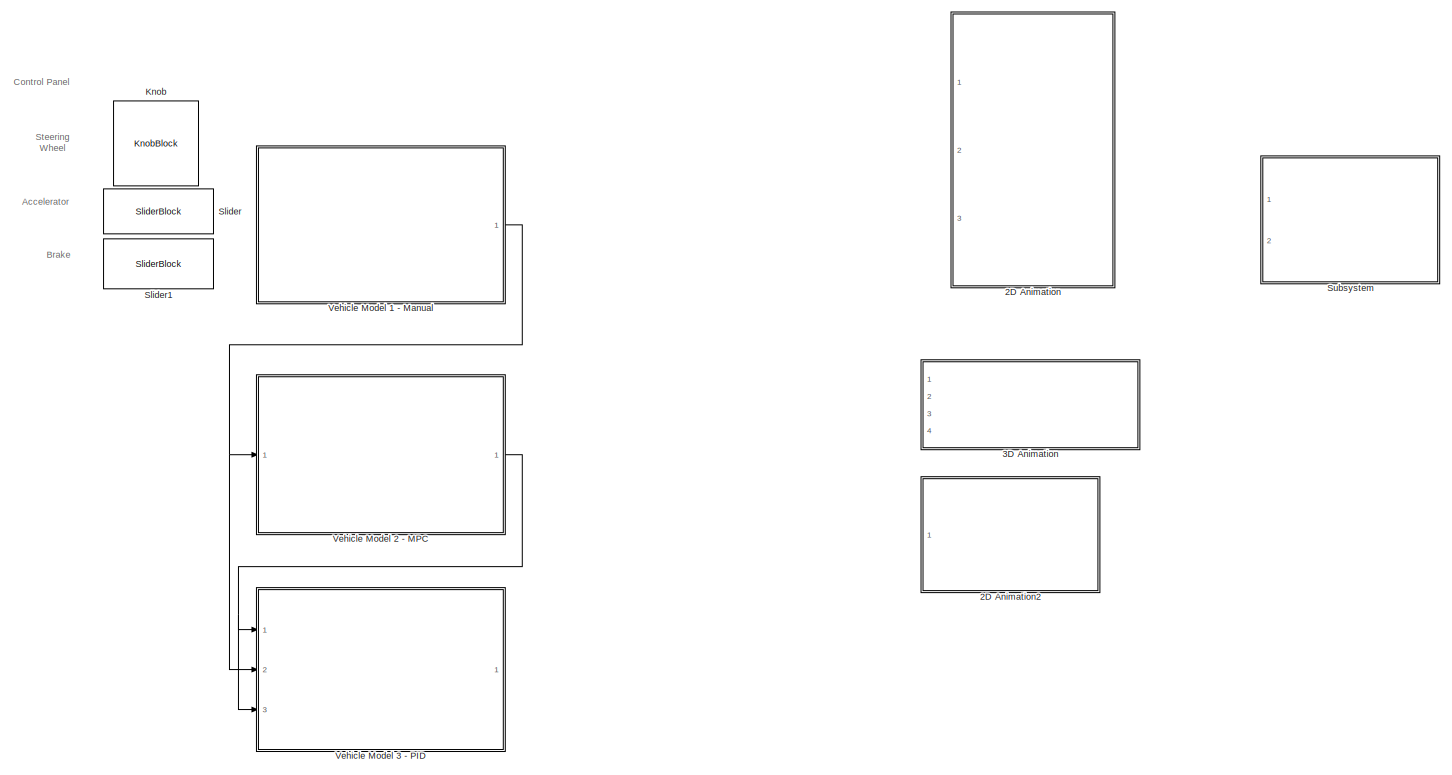
[diagram: root canvas - part 1/1, most of the canvas]
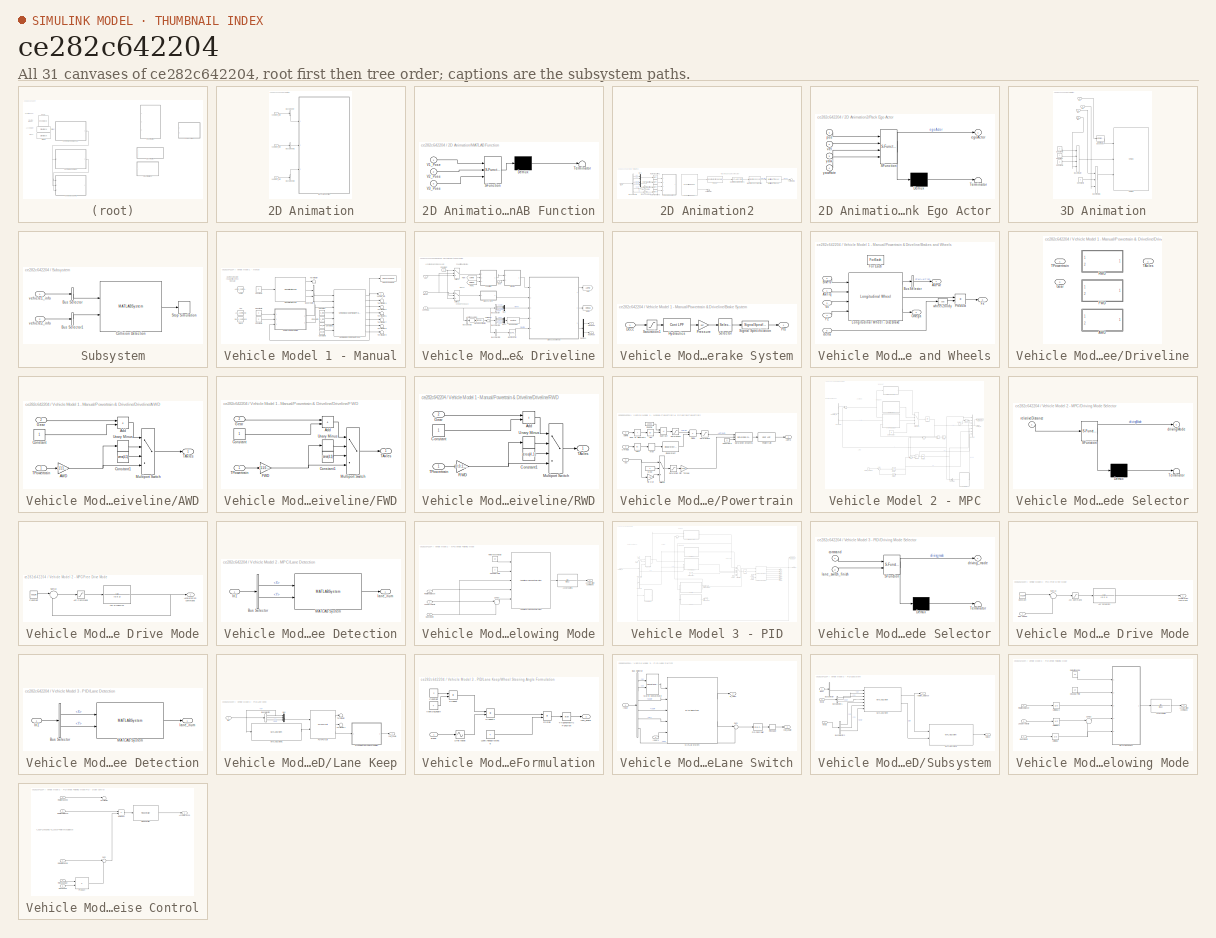
[diagram: thumbnail index - all 31 canvases of the model, root first then tree order]
MODEL slx_ce282c642204
KIND model
CONFIG AbsTol = auto
CONFIG EnableMultiTasking = off
CONFIG FixedStep = auto
CONFIG InitFcn = load("bus.mat");
CONFIG MaxStep = auto
CONFIG MinStep = auto
CONFIG RelTol = 1e-3
CONFIG SampleTimeConstraint = Unconstrained
CONFIG Solver = VariableStepAuto
CONFIG SolverName = VariableStepAuto
CONFIG StartTime = 0.0
CONFIG StopTime = 30
WORKSPACE source: mxarray member
WORKSPACE Acc_command: Simulink.Parameter (value not decoded)
WORKSPACE AngIn_command: Simulink.Parameter (value not decoded)
WORKSPACE Dece_command: Simulink.Parameter (value not decoded)
BLOCK [SubSystem] 2D Animation
  Commented = on
  Ports = [3]
  RequestExecContextInheritance = off
  SystemSampleTime = 0.02
  TreatAsAtomicUnit = on
BLOCK [BusSelector] 2D Animation/Bus Selector
  OutputAsBus = on
  OutputSignals = InertFrm.Cg.Disp.X,InertFrm.Cg.Disp.Y,InertFrm.Cg.Ang.psi
  Ports = [1, 1]
BLOCK [BusSelector] 2D Animation/Bus Selector1
  OutputAsBus = on
  OutputSignals = X,Y,psi
  Ports = [1, 1]
BLOCK [BusSelector] 2D Animation/Bus Selector2
  OutputAsBus = on
  OutputSignals = InertFrm.Cg.Disp.X,InertFrm.Cg.Disp.Y,InertFrm.Cg.Ang.psi
  Ports = [1, 1]
BLOCK [SubSystem] 2D Animation/MATLAB Function
  ErrorFcn = Stateflow.Translate.translate
  PermitHierarchicalResolution = ExplicitOnly
  Ports = [3]
  RequestExecContextInheritance = off
  SFBlockType = MATLAB Function
  TreatAsAtomicUnit = on
BLOCK [Demux] 2D Animation/MATLAB Function/ Demux 
  Outputs = 1
  Ports = [1, 1]
BLOCK [S-Function] 2D Animation/MATLAB Function/ SFunction 
  EnableBusSupport = on
  FunctionName = sf_sfun
  PortCounts = [3 1]
  Ports = [3, 1]
  SFcnIsStateOwnerBlock = off
  SFunctionDeploymentMode = off
  Tag = Stateflow S-Function 2
BLOCK [Terminator] 2D Animation/MATLAB Function/ Terminator 
BLOCK [Inport] 2D Animation/MATLAB Function/V1_Pose
BLOCK [Inport] 2D Animation/MATLAB Function/V2_Pose
  Port = 2
BLOCK [Inport] 2D Animation/MATLAB Function/V3_Pose
  Port = 3
BLOCK [Inport] 2D Animation/vehicle1_info
BLOCK [Inport] 2D Animation/vehicle2_info
  Port = 2
BLOCK [Inport] 2D Animation/vehicle3_info
  Port = 3
BLOCK [SubSystem] 2D Animation2
  Commented = on
  Ports = [1]
  RequestExecContextInheritance = off
BLOCK [BusSelector] 2D Animation2/Bus Selector
  OutputSignals = InertFrm.Cg.Disp.X,InertFrm.Cg.Disp.Y,InertFrm.Cg.Vel.Xdot,InertFrm.Cg.Vel.Ydot,InertFrm.Cg.Ang.psi,BdyFrm.Cg.AngVel.r
  Ports = [1, 6]
BLOCK [MATLABSystem] 2D Animation2/Cluster Radar Detections
  BusName = BusClusterDetections
  BusNameSource = Auto
  ClusterSize = 5
  MaskDisplay = disp(['Detection' char(10) 'Clustering']);\nport_label('input',1,'In');\nport_label('output',1,'Out');
  MaskType = helperClusterDetections
  Ports = [1, 1]
  SimulateUsing = Interpreted execution
  System = helperClusterDetections
BLOCK [Reference] 2D Animation2/Detection Concatenation  REF=drivinglib/Detection Concatenation
  Ports = [1, 1]
  SourceBlock = drivinglib/Detection Concatenation
  SourceProductBaseCode = DR
  SourceType = driving.internal.DetectionConcatenation
BLOCK [Inport] 2D Animation2/In1
BLOCK [Reference] 2D Animation2/Multi-Object Tracker  REF=drivinglib/Multi-Object Tracker
  Ports = [1, 1]
  SourceBlock = drivinglib/Multi-Object Tracker
  SourceProductBaseCode = DR
  SourceType = multiObjectTracker
BLOCK [Mux] 2D Animation2/Mux
  DisplayOption = bar
  Inputs = 2
  Ports = [2, 1]
BLOCK [Mux] 2D Animation2/Mux1
  DisplayOption = bar
  Inputs = 2
  Ports = [2, 1]
BLOCK [SubSystem] 2D Animation2/Pack Ego Actor
  ErrorFcn = Stateflow.Translate.translate
  PermitHierarchicalResolution = ExplicitOnly
  Ports = [4, 1]
  RequestExecContextInheritance = off
  SFBlockType = MATLAB Function
  TreatAsAtomicUnit = on
BLOCK [Demux] 2D Animation2/Pack Ego Actor/ Demux 
  Outputs = 1
  Ports = [1, 1]
BLOCK [S-Function] 2D Animation2/Pack Ego Actor/ SFunction 
  EnableBusSupport = on
  FunctionName = sf_sfun
  PortCounts = [4 2]
  Ports = [4, 2]
  SFcnIsStateOwnerBlock = off
  SFunctionDeploymentMode = off
  Tag = Stateflow S-Function 5
BLOCK [Terminator] 2D Animation2/Pack Ego Actor/ Terminator 
BLOCK [Outport] 2D Animation2/Pack Ego Actor/egoActor
  VectorParamsAs1DForOutWhenUnconnected = off
BLOCK [Inport] 2D Animation2/Pack Ego Actor/pos
BLOCK [Inport] 2D Animation2/Pack Ego Actor/vel
  Port = 2
BLOCK [Inport] 2D Animation2/Pack Ego Actor/yaw
  Port = 3
BLOCK [Inport] 2D Animation2/Pack Ego Actor/yawRate
  Port = 4
BLOCK [Reference] 2D Animation2/Radar  REF=drivingscenarioandsensors/Radar Detection Generator
  Ports = [1, 1]
  SourceBlock = drivingscenarioandsensors/Radar Detection Generator
  SourceProductBaseCode = DR
  SourceType = radarDetectionGenerator
BLOCK [RateTransition] 2D Animation2/Rate Transition1
  OutPortSampleTime = 0.1
BLOCK [RateTransition] 2D Animation2/Rate Transition3
  OutPortSampleTime = 0.1
BLOCK [RateTransition] 2D Animation2/Rate Transition4
  OutPortSampleTime = 0.1
BLOCK [RateTransition] 2D Animation2/Rate Transition5
  OutPortSampleTime = 0.1
BLOCK [Reference] 2D Animation2/Scenario Reader  REF=drivingscenarioandsensors/Scenario Reader
  Ports = [0, 2]
  SourceBlock = drivingscenarioandsensors/Scenario Reader
  SourceProductBaseCode = DR
  SourceType = driving.scenario.internal.ScenarioReader
BLOCK [Terminator] 2D Animation2/Terminator
BLOCK [Terminator] 2D Animation2/Terminator1
BLOCK [Gain] 2D Animation2/rad -> degree
  Gain = 180/pi
BLOCK [Gain] 2D Animation2/rad//s -> degree//s
  Gain = 180/pi
BLOCK [SubSystem] 3D Animation
  Commented = on
  Ports = [4]
  RequestExecContextInheritance = off
BLOCK [BusCreator] 3D Animation/Bus Creator
  DisplayOption = bar
  InheritFromInputs = on
  Inputs = 4
  Ports = [4, 1]
BLOCK [BusCreator] 3D Animation/Bus Creator1
  DisplayOption = bar
  InheritFromInputs = on
  Inputs = 3
  Ports = [3, 1]
BLOCK [Constant] 3D Animation/Constant
BLOCK [Constant] 3D Animation/Constant1
  Value = 0
BLOCK [Constant] 3D Animation/Constant2
  Value = 0
BLOCK [Constant] 3D Animation/Constant3
  Value = 0
BLOCK [Inport] 3D Animation/In1
  Port = 4
BLOCK [Inport] 3D Animation/In2
BLOCK [Inport] 3D Animation/In3
  Port = 3
BLOCK [Inport] 3D Animation/In4
  Port = 2
BLOCK [Reference] 3D Animation/VR Signal Expander  REF=vrlib/VR Signal Expander
  Ports = [1, 1]
  SourceBlock = vrlib/VR Signal Expander
  SourceProductBaseCode = SL
  SourceType = VR Signal Expander
BLOCK [Reference] 3D Animation/VR Sink  REF=vrlib/VR Sink
  InstantiateOnLoad = on
  Ports = [3]
  SourceBlock = vrlib/VR Sink
  SourceProductBaseCode = SL
  SourceType = Virtual Reality Sink
BLOCK [KnobBlock] Knob
  ScaleMax = 2
  ScaleMin = -2
BLOCK [SliderBlock] Slider
BLOCK [SliderBlock] Slider1
BLOCK [SubSystem] Subsystem
  Commented = on
  Ports = [2]
  RequestExecContextInheritance = off
BLOCK [BusSelector] Subsystem/Bus Selector
  OutputAsBus = on
  OutputSignals = InertFrm.Cg.Disp.X,InertFrm.Cg.Disp.Y,InertFrm.Cg.Ang.psi
  Ports = [1, 1]
BLOCK [BusSelector] Subsystem/Bus Selector1
  OutputAsBus = on
  OutputSignals = X,Y,psi
  Ports = [1, 1]
BLOCK [MATLABSystem] Subsystem/Collision Detection
  MaskDisplay = disp('collision_detection');\nport_label('input',1,'v1_pos');\nport_label('input',2,'v2_pos');\nport_label('output',1,'collision_flag');
  MaskType = collision_detection
  Ports = [2, 1]
  SimulateUsing = Interpreted execution
  System = collision_detection
  v1_frame = [ 4, 2 ]
  v2_frame = [ 4, 2 ]
BLOCK [Stop] Subsystem/Stop Simulation
BLOCK [Inport] Subsystem/vehicle1_info
BLOCK [Inport] Subsystem/vehicle2_info
  Port = 2
BLOCK [SubSystem] Vehicle Model 1 - Manual
  Ports = [0, 1]
  RequestExecContextInheritance = off
BLOCK [Constant] Vehicle Model 1 - Manual/Acc
  Commented = on
  Value = Acc_command
BLOCK [Constant] Vehicle Model 1 - Manual/AngIn
  Commented = on
  Value = AngIn_command
BLOCK [BusCreator] Vehicle Model 1 - Manual/Bus Creator
  DisplayOption = bar
  InheritFromInputs = on
  Inputs = 2
  Ports = [2, 1]
BLOCK [Constant] Vehicle Model 1 - Manual/Constant
  Value = X_init
BLOCK [Constant] Vehicle Model 1 - Manual/Constant1
  Value = Y_init
BLOCK [Constant] Vehicle Model 1 - Manual/Constant2
  Value = xdot_init
BLOCK [Constant] Vehicle Model 1 - Manual/Constant3
  Value = ydot_init
BLOCK [Constant] Vehicle Model 1 - Manual/Constant4
  Value = 0
BLOCK [Constant] Vehicle Model 1 - Manual/Constant5
  Value = 0
BLOCK [Constant] Vehicle Model 1 - Manual/Constant6
  Value = 0
BLOCK [Constant] Vehicle Model 1 - Manual/Dece
  Commented = on
  Value = Dece_command
BLOCK [Reference] Vehicle Model 1 - Manual/Kinematic Steering  REF=vehdynlibsteering/Kinematic Steering
  Ports = [1, 3]
  SourceBlock = vehdynlibsteering/Kinematic Steering
  SourceProductBaseCode = VE
  SourceType = Kinematic Steering
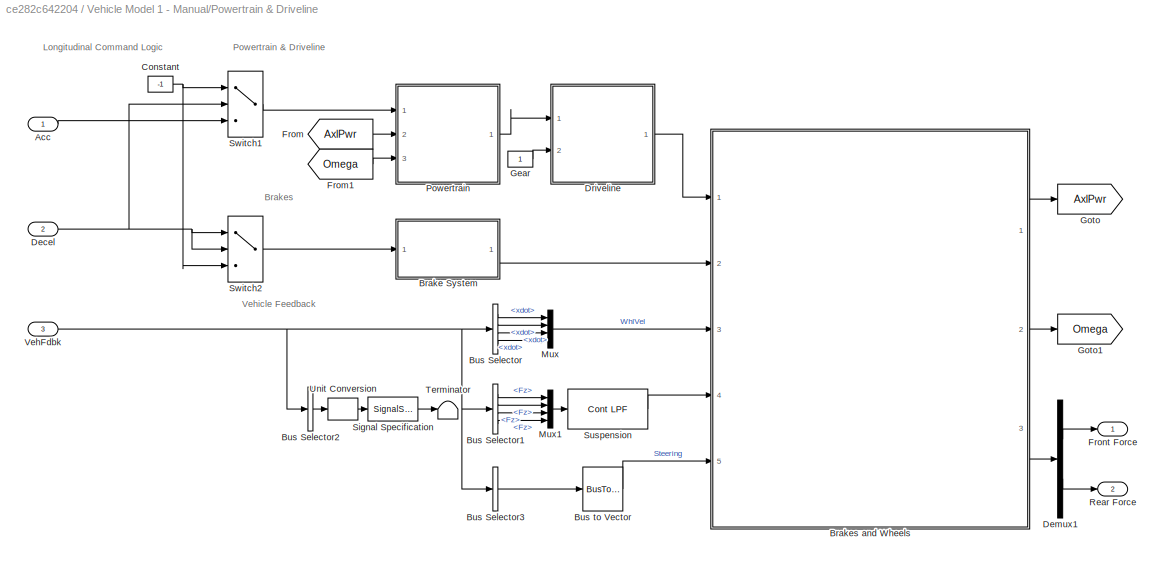
BLOCK [SubSystem] Vehicle Model 1 - Manual/Powertrain & Driveline
  Ports = [3, 2]
  RequestExecContextInheritance = off
BLOCK [Inport] Vehicle Model 1 - Manual/Powertrain & Driveline/Acc
  NameLocation = top
BLOCK [SubSystem] Vehicle Model 1 - Manual/Powertrain & Driveline/Brake System
  Ports = [1, 1]
  RequestExecContextInheritance = off
BLOCK [Inport] Vehicle Model 1 - Manual/Powertrain & Driveline/Brake System/Decc
BLOCK [Reference] Vehicle Model 1 - Manual/Powertrain & Driveline/Brake System/Hydraulics  REF=autolibutils/Cont LPF
  Ports = [1, 1]
  SourceBlock = autolibutils/Cont LPF
  SourceProductBaseCode = PW,MT,VE,VP
BLOCK [Gain] Vehicle Model 1 - Manual/Powertrain & Driveline/Brake System/Pressure
  Gain = 2e7
BLOCK [Outport] Vehicle Model 1 - Manual/Powertrain & Driveline/Brake System/Prs
  VectorParamsAs1DForOutWhenUnconnected = off
BLOCK [Saturate] Vehicle Model 1 - Manual/Powertrain & Driveline/Brake System/Saturation1
  LowerLimit = 0
  UpperLimit = inf
  ZeroCross = off
BLOCK [Selector] Vehicle Model 1 - Manual/Powertrain & Driveline/Brake System/Selector
  IndexOptions = Index vector (dialog)
  Indices = [1 1 1 1]
  InputPortWidth = 1
  OutputSizes = 1
  Ports = [1, 1]
BLOCK [SignalSpecification] Vehicle Model 1 - Manual/Powertrain & Driveline/Brake System/Signal Specification
  Unit = Pa
BLOCK [SubSystem] Vehicle Model 1 - Manual/Powertrain & Driveline/Brakes and Wheels
  Ports = [5, 3]
  RequestExecContextInheritance = off
  TreatAsAtomicUnit = on
BLOCK [Outport] Vehicle Model 1 - Manual/Powertrain & Driveline/Brakes and Wheels/AxlPwr
  ConcatenationDimension = 1
  VectorParamsAs1DForOutWhenUnconnected = off
BLOCK [Inport] Vehicle Model 1 - Manual/Powertrain & Driveline/Brakes and Wheels/AxlTrq
  Partition = on
  PartitionDimension = 1
  PartitionOffset = 0
  PartitionWidth = 1
BLOCK [Inport] Vehicle Model 1 - Manual/Powertrain & Driveline/Brakes and Wheels/BrkPrs
  Partition = on
  PartitionDimension = 1
  PartitionOffset = 0
  PartitionWidth = 1
  Port = 2
BLOCK [BusSelector] Vehicle Model 1 - Manual/Powertrain & Driveline/Brakes and Wheels/Bus Selector
  OutputSignals = PwrInfo.PwrTrnsfrd.PwrAxlTrq
  Ports = [1, 1]
BLOCK [ForEach] Vehicle Model 1 - Manual/Powertrain & Driveline/Brakes and Wheels/For Each
  DisableCoverage = on
  Ports = []
BLOCK [Outport] Vehicle Model 1 - Manual/Powertrain & Driveline/Brakes and Wheels/Fx
  ConcatenationDimension = 1
  Port = 3
  VectorParamsAs1DForOutWhenUnconnected = off
BLOCK [Inport] Vehicle Model 1 - Manual/Powertrain & Driveline/Brakes and Wheels/Fz
  Partition = on
  PartitionDimension = 1
  PartitionOffset = 0
  PartitionWidth = 1
  Port = 4
BLOCK [Reference] Vehicle Model 1 - Manual/Powertrain & Driveline/Brakes and Wheels/Longitudinal Wheel - Disc Brake  REF=autolibshared/Longitudinal Wheel
  Ports = [4, 3]
  SourceBlock = autolibshared/Longitudinal Wheel
  SourceProductBaseCode = PW,MT,VE,VP
  SourceType = Longitudinal Wheel
BLOCK [Outport] Vehicle Model 1 - Manual/Powertrain & Driveline/Brakes and Wheels/Omega
  ConcatenationDimension = 1
  Port = 2
  VectorParamsAs1DForOutWhenUnconnected = off
BLOCK [Product] Vehicle Model 1 - Manual/Powertrain & Driveline/Brakes and Wheels/Product
  Ports = [2, 1]
BLOCK [Inport] Vehicle Model 1 - Manual/Powertrain & Driveline/Brakes and Wheels/Vx
  Partition = on
  PartitionDimension = 1
  PartitionOffset = 0
  PartitionWidth = 1
  Port = 3
BLOCK [Inport] Vehicle Model 1 - Manual/Powertrain & Driveline/Brakes and Wheels/delta
  Partition = on
  PartitionDimension = 1
  PartitionOffset = 0
  PartitionWidth = 1
  Port = 5
BLOCK [Trigonometry] Vehicle Model 1 - Manual/Powertrain & Driveline/Brakes and Wheels/wheel2body
  Operator = cos
  Ports = [1, 1]
BLOCK [BusSelector] Vehicle Model 1 - Manual/Powertrain & Driveline/Bus Selector
  OutputSignals = BdyFrm.FrntAxl.Lft.Vel.xdot,BdyFrm.FrntAxl.Rght.Vel.xdot,BdyFrm.RearAxl.Lft.Vel.xdot,BdyFrm.RearAxl.Rght.Vel.xdot
  Ports = [1, 4]
BLOCK [BusSelector] Vehicle Model 1 - Manual/Powertrain & Driveline/Bus Selector1
  OutputSignals = BdyFrm.Forces.FrntAxl.Lft.Fz,BdyFrm.Forces.FrntAxl.Rght.Fz,BdyFrm.Forces.RearAxl.Lft.Fz,BdyFrm.Forces.RearAxl.Rght.Fz
  Ports = [1, 4]
BLOCK [BusSelector] Vehicle Model 1 - Manual/Powertrain & Driveline/Bus Selector2
  OutputAsBus = on
  OutputSignals = BdyFrm.Cg.Vel.xdot
  Ports = [1, 1]
BLOCK [BusSelector] Vehicle Model 1 - Manual/Powertrain & Driveline/Bus Selector3
  OutputAsBus = on
  OutputSignals = BdyFrm.FrntAxl.Steer.WhlAngFL,BdyFrm.FrntAxl.Steer.WhlAngFR,BdyFrm.RearAxl.Steer.WhlAngRL,BdyFrm.RearAxl.Steer.WhlAngRR
  Ports = [1, 1]
BLOCK [BusToVector] Vehicle Model 1 - Manual/Powertrain & Driveline/Bus to Vector
BLOCK [Constant] Vehicle Model 1 - Manual/Powertrain & Driveline/Constant
  NameLocation = top
  Value = -1
BLOCK [Inport] Vehicle Model 1 - Manual/Powertrain & Driveline/Decel
  NameLocation = top
  Port = 2
BLOCK [Demux] Vehicle Model 1 - Manual/Powertrain & Driveline/Demux1
  Outputs = [2 2]
  Ports = [1, 2]
BLOCK [SubSystem] Vehicle Model 1 - Manual/Powertrain & Driveline/Driveline
  LabelModeActiveChoice = 0
  Ports = [2, 1]
  RequestExecContextInheritance = off
  Variant = on
  VariantControl = Variant1
  VariantControlMode = Label
BLOCK [SubSystem] Vehicle Model 1 - Manual/Powertrain & Driveline/Driveline/AWD
  Ports = [2, 1]
  RequestExecContextInheritance = off
  VariantControl = 2
BLOCK [Gain] Vehicle Model 1 - Manual/Powertrain & Driveline/Driveline/AWD/AWD
  Gain = [1;1;1;1]./2
BLOCK [Sum] Vehicle Model 1 - Manual/Powertrain & Driveline/Driveline/AWD/Add
  IconShape = rectangular
  Ports = [2, 1]
BLOCK [Constant] Vehicle Model 1 - Manual/Powertrain & Driveline/Driveline/AWD/Constant
BLOCK [Constant] Vehicle Model 1 - Manual/Powertrain & Driveline/Driveline/AWD/Constant1
  Value = zeros(4,1)
BLOCK [Inport] Vehicle Model 1 - Manual/Powertrain & Driveline/Driveline/AWD/Gear
  Port = 2
BLOCK [MultiPortSwitch] Vehicle Model 1 - Manual/Powertrain & Driveline/Driveline/AWD/Multiport Switch
  DataPortOrder = Zero-based contiguous
  InputSameDT = off
  Ports = [4, 1]
  SaturateOnIntegerOverflow = off
  zeroidx = on
BLOCK [Outport] Vehicle Model 1 - Manual/Powertrain & Driveline/Driveline/AWD/TAxles
  VectorParamsAs1DForOutWhenUnconnected = off
BLOCK [Inport] Vehicle Model 1 - Manual/Powertrain & Driveline/Driveline/AWD/TPowertrain
BLOCK [UnaryMinus] Vehicle Model 1 - Manual/Powertrain & Driveline/Driveline/AWD/Unary Minus
BLOCK [SubSystem] Vehicle Model 1 - Manual/Powertrain & Driveline/Driveline/FWD
  Ports = [2, 1]
  RequestExecContextInheritance = off
  VariantControl = 1
BLOCK [Sum] Vehicle Model 1 - Manual/Powertrain & Driveline/Driveline/FWD/Add
  IconShape = rectangular
  Ports = [2, 1]
BLOCK [Constant] Vehicle Model 1 - Manual/Powertrain & Driveline/Driveline/FWD/Constant
BLOCK [Constant] Vehicle Model 1 - Manual/Powertrain & Driveline/Driveline/FWD/Constant1
  Value = zeros(4,1)
BLOCK [Gain] Vehicle Model 1 - Manual/Powertrain & Driveline/Driveline/FWD/FWD
  Gain = [1;1;0;0]
BLOCK [Inport] Vehicle Model 1 - Manual/Powertrain & Driveline/Driveline/FWD/Gear
  Port = 2
BLOCK [MultiPortSwitch] Vehicle Model 1 - Manual/Powertrain & Driveline/Driveline/FWD/Multiport Switch
  DataPortOrder = Zero-based contiguous
  InputSameDT = off
  Ports = [4, 1]
  SaturateOnIntegerOverflow = off
  zeroidx = on
BLOCK [Outport] Vehicle Model 1 - Manual/Powertrain & Driveline/Driveline/FWD/TAxles
  VectorParamsAs1DForOutWhenUnconnected = off
BLOCK [Inport] Vehicle Model 1 - Manual/Powertrain & Driveline/Driveline/FWD/TPowertrain
BLOCK [UnaryMinus] Vehicle Model 1 - Manual/Powertrain & Driveline/Driveline/FWD/Unary Minus
BLOCK [Inport] Vehicle Model 1 - Manual/Powertrain & Driveline/Driveline/Gear
  Port = 2
BLOCK [SubSystem] Vehicle Model 1 - Manual/Powertrain & Driveline/Driveline/RWD
  Ports = [2, 1]
  RequestExecContextInheritance = off
  VariantControl = 0
BLOCK [Sum] Vehicle Model 1 - Manual/Powertrain & Driveline/Driveline/RWD/Add
  IconShape = rectangular
  Ports = [2, 1]
BLOCK [Constant] Vehicle Model 1 - Manual/Powertrain & Driveline/Driveline/RWD/Constant
BLOCK [Constant] Vehicle Model 1 - Manual/Powertrain & Driveline/Driveline/RWD/Constant1
  Value = zeros(4,1)
BLOCK [Inport] Vehicle Model 1 - Manual/Powertrain & Driveline/Driveline/RWD/Gear
  Port = 2
BLOCK [MultiPortSwitch] Vehicle Model 1 - Manual/Powertrain & Driveline/Driveline/RWD/Multiport Switch
  DataPortOrder = Zero-based contiguous
  InputSameDT = off
  Ports = [4, 1]
  SaturateOnIntegerOverflow = off
  zeroidx = on
BLOCK [Gain] Vehicle Model 1 - Manual/Powertrain & Driveline/Driveline/RWD/RWD
  Gain = [0;0;1;1]
BLOCK [Outport] Vehicle Model 1 - Manual/Powertrain & Driveline/Driveline/RWD/TAxles
  VectorParamsAs1DForOutWhenUnconnected = off
BLOCK [Inport] Vehicle Model 1 - Manual/Powertrain & Driveline/Driveline/RWD/TPowertrain
BLOCK [UnaryMinus] Vehicle Model 1 - Manual/Powertrain & Driveline/Driveline/RWD/Unary Minus
BLOCK [Outport] Vehicle Model 1 - Manual/Powertrain & Driveline/Driveline/TAxles
  VectorParamsAs1DForOutWhenUnconnected = off
BLOCK [Inport] Vehicle Model 1 - Manual/Powertrain & Driveline/Driveline/TPowertrain
BLOCK [From] Vehicle Model 1 - Manual/Powertrain & Driveline/From
  GotoTag = AxlPwr
BLOCK [From] Vehicle Model 1 - Manual/Powertrain & Driveline/From1
  GotoTag = Omega
BLOCK [Outport] Vehicle Model 1 - Manual/Powertrain & Driveline/Front Force
  VectorParamsAs1DForOutWhenUnconnected = off
BLOCK [Constant] Vehicle Model 1 - Manual/Powertrain & Driveline/Gear
BLOCK [Goto] Vehicle Model 1 - Manual/Powertrain & Driveline/Goto
  GotoTag = AxlPwr
BLOCK [Goto] Vehicle Model 1 - Manual/Powertrain & Driveline/Goto1
  GotoTag = Omega
BLOCK [Mux] Vehicle Model 1 - Manual/Powertrain & Driveline/Mux
  DisplayOption = bar
  Ports = [4, 1]
BLOCK [Mux] Vehicle Model 1 - Manual/Powertrain & Driveline/Mux1
  DisplayOption = bar
  Ports = [4, 1]
BLOCK [SubSystem] Vehicle Model 1 - Manual/Powertrain & Driveline/Powertrain
  Ports = [3, 1]
  RequestExecContextInheritance = off
BLOCK [Abs] Vehicle Model 1 - Manual/Powertrain & Driveline/Powertrain/Abs
  SaturateOnIntegerOverflow = off
  ZeroCross = off
BLOCK [Abs] Vehicle Model 1 - Manual/Powertrain & Driveline/Powertrain/Abs1
  SaturateOnIntegerOverflow = off
  ZeroCross = off
BLOCK [Inport] Vehicle Model 1 - Manual/Powertrain & Driveline/Powertrain/Acc
BLOCK [Inport] Vehicle Model 1 - Manual/Powertrain & Driveline/Powertrain/AxlPwr
  Port = 2
BLOCK [Outport] Vehicle Model 1 - Manual/Powertrain & Driveline/Powertrain/AxlTrq
  VectorParamsAs1DForOutWhenUnconnected = off
BLOCK [Constant] Vehicle Model 1 - Manual/Powertrain & Driveline/Powertrain/Constant3
  NameLocation = top
  Value = 0
BLOCK [Gain] Vehicle Model 1 - Manual/Powertrain & Driveline/Powertrain/Diff Torque
  Gain = 1000
BLOCK [Product] Vehicle Model 1 - Manual/Powertrain & Driveline/Powertrain/Divide
  Inputs = */
  Ports = [2, 1]
BLOCK [Constant] Vehicle Model 1 - Manual/Powertrain & Driveline/Powertrain/EngPwr
  NameLocation = top
  Value = 100e3
BLOCK [Constant] Vehicle Model 1 - Manual/Powertrain & Driveline/Powertrain/Gear
  SampleTime = -1
BLOCK [MinMax] Vehicle Model 1 - Manual/Powertrain & Driveline/Powertrain/Max
  Function = max
  Ports = [1, 1]
  ZeroCross = off
BLOCK [Inport] Vehicle Model 1 - Manual/Powertrain & Driveline/Powertrain/Omega
  Port = 3
BLOCK [Reference] Vehicle Model 1 - Manual/Powertrain & Driveline/Powertrain/Powertrain  REF=autolibutils/Cont LPF
  Ports = [1, 1]
  SourceBlock = autolibutils/Cont LPF
  SourceProductBaseCode = PW,MT,VE,VP
BLOCK [Saturate] Vehicle Model 1 - Manual/Powertrain & Driveline/Powertrain/Saturation
  LowerLimit = 0
  UpperLimit = inf
  ZeroCross = off
BLOCK [Reference] Vehicle Model 1 - Manual/Powertrain & Driveline/Powertrain/Saturation Dynamic1  REF=simulink/Discontinuities/Saturation
Dynamic
  Ports = [3, 1]
  SourceBlock = simulink/Discontinuities/Saturation\nDynamic
  SourceProductBaseCode = SL
  SourceType = Saturation Dynamic
BLOCK [Saturate] Vehicle Model 1 - Manual/Powertrain & Driveline/Powertrain/Saturation2
  LowerLimit = 100
  UpperLimit = inf
  ZeroCross = off
BLOCK [Saturate] Vehicle Model 1 - Manual/Powertrain & Driveline/Powertrain/Saturation3
  LowerLimit = 0
  UpperLimit = 1000
  ZeroCross = off
BLOCK [Sum] Vehicle Model 1 - Manual/Powertrain & Driveline/Powertrain/Subtract
  IconShape = rectangular
  Inputs = +-
  Ports = [2, 1]
BLOCK [Sum] Vehicle Model 1 - Manual/Powertrain & Driveline/Powertrain/Sum of Elements
  IconShape = rectangular
  Inputs = +
  Ports = [1, 1]
BLOCK [Switch] Vehicle Model 1 - Manual/Powertrain & Driveline/Powertrain/Switch
  InputSameDT = off
  SaturateOnIntegerOverflow = off
  ZeroCross = off
BLOCK [Gain] Vehicle Model 1 - Manual/Powertrain & Driveline/Powertrain/Tip Out
  Gain = -10
BLOCK [Reference] Vehicle Model 1 - Manual/Powertrain & Driveline/Powertrain/div0protect  REF=autolibutils/div0protect - poly
  Ports = [1, 1]
  SourceBlock = autolibutils/div0protect - poly
  SourceProductBaseCode = PW,MT,VE,VP
BLOCK [Outport] Vehicle Model 1 - Manual/Powertrain & Driveline/Rear Force
  Port = 2
  VectorParamsAs1DForOutWhenUnconnected = off
BLOCK [SignalSpecification] Vehicle Model 1 - Manual/Powertrain & Driveline/Signal Specification
  Unit = km/hr
BLOCK [Reference] Vehicle Model 1 - Manual/Powertrain & Driveline/Suspension  REF=autolibutils/Cont LPF
  Ports = [1, 1]
  SourceBlock = autolibutils/Cont LPF
  SourceProductBaseCode = PW,MT,VE,VP
BLOCK [Switch] Vehicle Model 1 - Manual/Powertrain & Driveline/Switch1
  Criteria = u2 > Threshold
  InputSameDT = off
  SaturateOnIntegerOverflow = off
BLOCK [Switch] Vehicle Model 1 - Manual/Powertrain & Driveline/Switch2
  Criteria = u2 > Threshold
  InputSameDT = off
  SaturateOnIntegerOverflow = off
BLOCK [Terminator] Vehicle Model 1 - Manual/Powertrain & Driveline/Terminator
BLOCK [UnitConversion] Vehicle Model 1 - Manual/Powertrain & Driveline/Unit Conversion
BLOCK [Inport] Vehicle Model 1 - Manual/Powertrain & Driveline/VehFdbk
  Port = 3
BLOCK [Terminator] Vehicle Model 1 - Manual/Terminator
BLOCK [Terminator] Vehicle Model 1 - Manual/Terminator4
BLOCK [Terminator] Vehicle Model 1 - Manual/Terminator5
BLOCK [Terminator] Vehicle Model 1 - Manual/Terminator6
BLOCK [Terminator] Vehicle Model 1 - Manual/Terminator7
BLOCK [Terminator] Vehicle Model 1 - Manual/Terminator8
BLOCK [Terminator] Vehicle Model 1 - Manual/Terminator9
BLOCK [ToWorkspace] Vehicle Model 1 - Manual/To Workspace
  FixptAsFi = on
  MaxDataPoints = inf
  Ports = [1]
  SampleTime = 0.1
  SaveFormat = Timeseries
  VariableName = v1_info
BLOCK [Reference] Vehicle Model 1 - Manual/Vehicle Body 3DOF Dual Track  REF=autolibshared/Vehicle Body 3DOF Single Track
  Ports = [7, 7]
  SourceBlock = autolibshared/Vehicle Body 3DOF Single Track
  SourceProductBaseCode = PW,MT,VE,VP
  SourceType = Vehicle Body 3DOF Lateral
BLOCK [Outport] Vehicle Model 1 - Manual/vehicle_info
BLOCK [SubSystem] Vehicle Model 2 - MPC
  Ports = [1, 1]
  RequestExecContextInheritance = off
BLOCK [Sum] Vehicle Model 2 - MPC/Add
  IconShape = rectangular
  Inputs = +-
  Ports = [2, 1]
BLOCK [BusCreator] Vehicle Model 2 - MPC/Bus Creator
  DisplayOption = bar
  InheritFromInputs = on
  Inputs = 7
  Ports = [7, 1]
BLOCK [BusCreator] Vehicle Model 2 - MPC/Bus Creator1
  DisplayOption = bar
  InheritFromInputs = on
  Inputs = 2
  Ports = [2, 1]
BLOCK [BusSelector] Vehicle Model 2 - MPC/Bus Selector
  OutputSignals = InertFrm.Cg.Disp.X,InertFrm.Cg.Disp.Y,BdyFrm.Cg.Vel.xdot
  Ports = [1, 3]
BLOCK [Constant] Vehicle Model 2 - MPC/Constant
  Value = 0
BLOCK [Trigonometry] Vehicle Model 2 - MPC/Cos
  Operator = cos
  Ports = [1, 1]
BLOCK [SubSystem] Vehicle Model 2 - MPC/Driving Mode Selector
  ErrorFcn = Stateflow.Translate.translate
  PermitHierarchicalResolution = ExplicitOnly
  Ports = [1, 1]
  RequestExecContextInheritance = off
  SFBlockType = Chart
  TreatAsAtomicUnit = on
BLOCK [Demux] Vehicle Model 2 - MPC/Driving Mode Selector/ Demux 
  Outputs = 1
  Ports = [1, 1]
BLOCK [S-Function] Vehicle Model 2 - MPC/Driving Mode Selector/ SFunction 
  EnableBusSupport = on
  FunctionName = sf_sfun
  PortCounts = [1 2]
  Ports = [1, 2]
  SFcnIsStateOwnerBlock = off
  SFunctionDeploymentMode = off
  Tag = Stateflow S-Function 4
BLOCK [Terminator] Vehicle Model 2 - MPC/Driving Mode Selector/ Terminator 
BLOCK [Outport] Vehicle Model 2 - MPC/Driving Mode Selector/drivingMode
BLOCK [Inport] Vehicle Model 2 - MPC/Driving Mode Selector/relativeDistance
BLOCK [Constant] Vehicle Model 2 - MPC/Emergency Brake
  Value = -5
BLOCK [SubSystem] Vehicle Model 2 - MPC/Free Drive Mode
  Ports = [0, 1]
  RequestExecContextInheritance = off
BLOCK [Saturate] Vehicle Model 2 - MPC/Free Drive Mode/Acc Command
  LowerLimit = -3
  UpperLimit = 2
BLOCK [TransferFcn] Vehicle Model 2 - MPC/Free Drive Mode/Acc Dynamics
  Denominator = [0.5 1]
BLOCK [Outport] Vehicle Model 2 - MPC/Free Drive Mode/Acceleration command
BLOCK [Constant] Vehicle Model 2 - MPC/Free Drive Mode/Constant
  Value = xdot_init
BLOCK [Sum] Vehicle Model 2 - MPC/Free Drive Mode/Sum13
  Inputs = |+-
  Ports = [2, 1]
BLOCK [Integrator] Vehicle Model 2 - MPC/Integrator
  Ports = [1, 1]
BLOCK [SubSystem] Vehicle Model 2 - MPC/Lane Detection
  Ports = [1, 1]
  RequestExecContextInheritance = off
BLOCK [BusSelector] Vehicle Model 2 - MPC/Lane Detection/Bus Selector
  OutputSignals = X,Y
  Ports = [1, 2]
BLOCK [Inport] Vehicle Model 2 - MPC/Lane Detection/In1
BLOCK [MATLABSystem] Vehicle Model 2 - MPC/Lane Detection/MATLAB System
  MaskDisplay = disp('lane_localization');\nport_label('input',1,'X');\nport_label('input',2,'Y');\nport_label('output',1,'lane_property');
  MaskType = lane_localization
  Ports = [2, 1]
  SimulateUsing = Code generation
  System = lane_localization
BLOCK [Outport] Vehicle Model 2 - MPC/Lane Detection/lane_num
BLOCK [MultiPortSwitch] Vehicle Model 2 - MPC/Multiport Switch
  InputSameDT = off
  Ports = [4, 1]
  SaturateOnIntegerOverflow = off
BLOCK [Integrator] Vehicle Model 2 - MPC/Position
  InitialCondition = X_init
  Ports = [1, 1]
BLOCK [Integrator] Vehicle Model 2 - MPC/Position1
  InitialCondition = Y_init
  Ports = [1, 1]
BLOCK [Product] Vehicle Model 2 - MPC/Product
  Ports = [2, 1]
BLOCK [Product] Vehicle Model 2 - MPC/Product1
  Ports = [2, 1]
BLOCK [Product] Vehicle Model 2 - MPC/Product2
  Ports = [2, 1]
BLOCK [Trigonometry] Vehicle Model 2 - MPC/Sin
  Ports = [1, 1]
BLOCK [Integrator] Vehicle Model 2 - MPC/Speed
  InitialCondition = xdot_init
  LimitOutput = on
  LowerSaturationLimit = 0
  Ports = [1, 1]
BLOCK [Sum] Vehicle Model 2 - MPC/Sum1
  Inputs = |+-
  Ports = [2, 1]
BLOCK [ToWorkspace] Vehicle Model 2 - MPC/To Workspace
  FixptAsFi = on
  MaxDataPoints = inf
  Ports = [1]
  SampleTime = -1
  SaveFormat = Timeseries
  VariableName = v2_info
BLOCK [UnitDelay] Vehicle Model 2 - MPC/Unit Delay
  HasFrameUpgradeWarning = on
  NameLocation = top
  SampleTime = -1
BLOCK [SubSystem] Vehicle Model 2 - MPC/Vehicle Following Mode
  Ports = [3, 1]
  RequestExecContextInheritance = off
BLOCK [TransferFcn] Vehicle Model 2 - MPC/Vehicle Following Mode/Acc Dynamics
  Denominator = [0.5 1]
BLOCK [Outport] Vehicle Model 2 - MPC/Vehicle Following Mode/Acceleration command
BLOCK [Reference] Vehicle Model 2 - MPC/Vehicle Following Mode/Adaptive Cruise Control System  REF=mpcadaslib/Adaptive Cruise Control System
  Ports = [5, 1]
  SourceBlock = mpcadaslib/Adaptive Cruise Control System
  SourceProductBaseCode = MP
  SourceType = Adaptive cruise control (ACC) system
BLOCK [Inport] Vehicle Model 2 - MPC/Vehicle Following Mode/Ego velocity
  NameLocation = top
  Port = 3
BLOCK [Constant] Vehicle Model 2 - MPC/Vehicle Following Mode/Headway Time
  Value = 2
BLOCK [Inport] Vehicle Model 2 - MPC/Vehicle Following Mode/Leader velocity
  Port = 2
BLOCK [Constant] Vehicle Model 2 - MPC/Vehicle Following Mode/Reference Velocity
  Value = 30
BLOCK [Inport] Vehicle Model 2 - MPC/Vehicle Following Mode/Relative distance
BLOCK [Sum] Vehicle Model 2 - MPC/Vehicle Following Mode/Sum13
  Inputs = |+-
  Ports = [2, 1]
BLOCK [Inport] Vehicle Model 2 - MPC/perception_info
BLOCK [Constant] Vehicle Model 2 - MPC/steering_command
  Value = 0
BLOCK [Outport] Vehicle Model 2 - MPC/vehicle_info
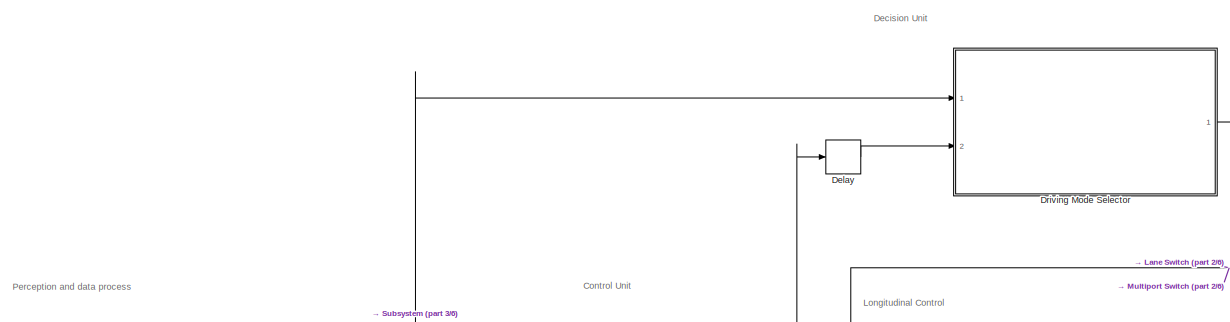
[diagram: Vehicle Model 3 - PID - part 1/6, top left region]
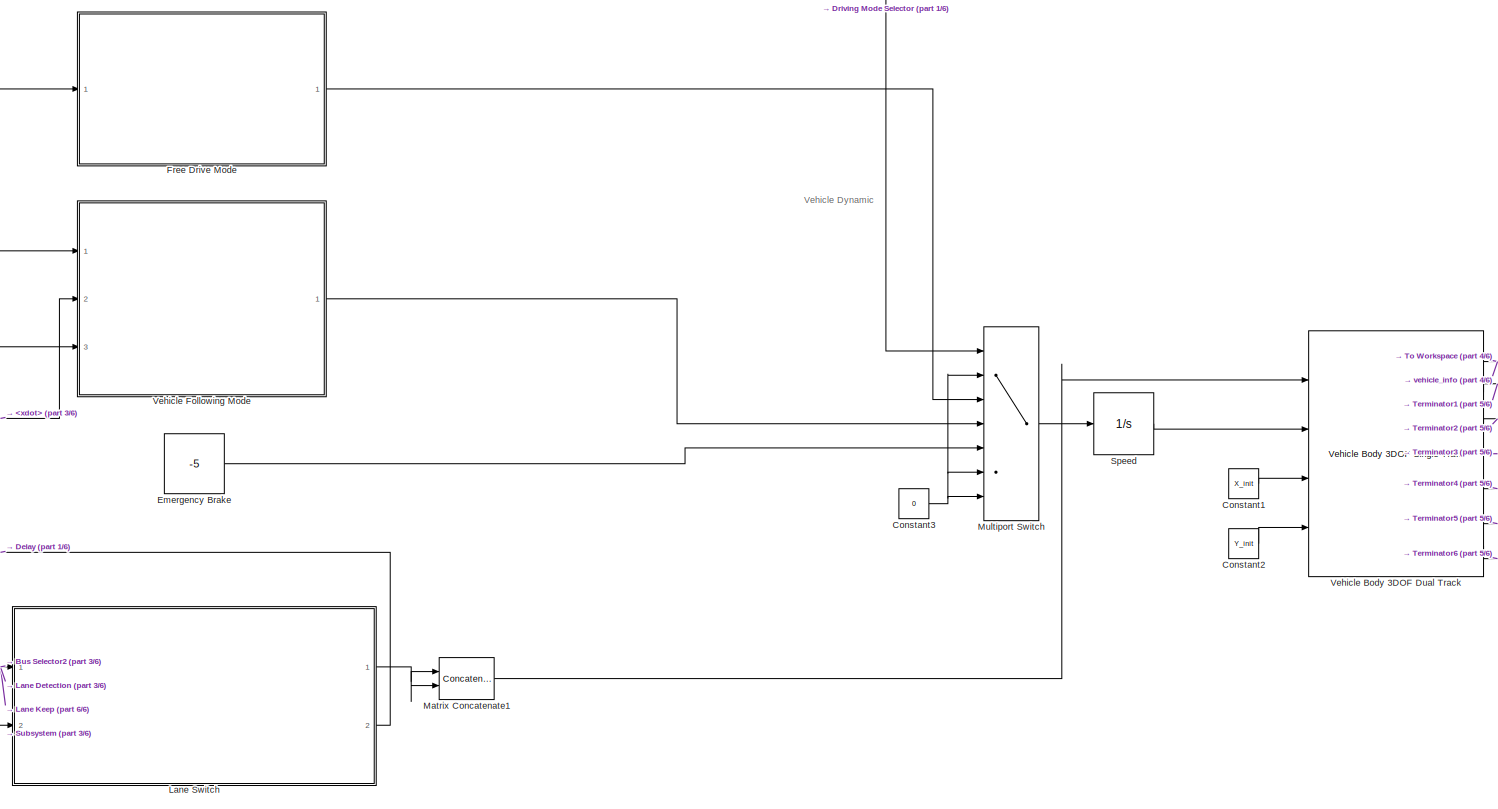
[diagram: Vehicle Model 3 - PID - part 2/6, central region]
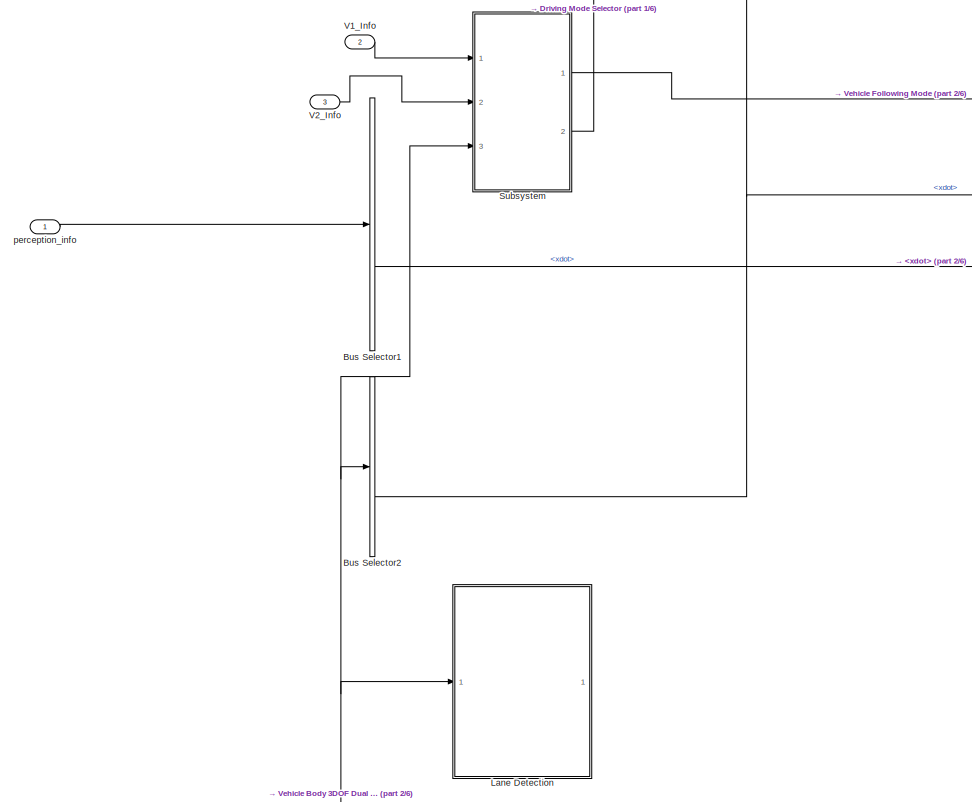
[diagram: Vehicle Model 3 - PID - part 3/6, middle left region]
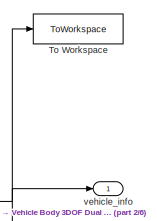
[diagram: Vehicle Model 3 - PID - part 4/6, middle right region]
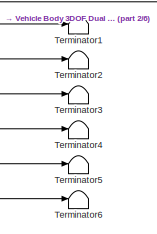
[diagram: Vehicle Model 3 - PID - part 5/6, middle right region]
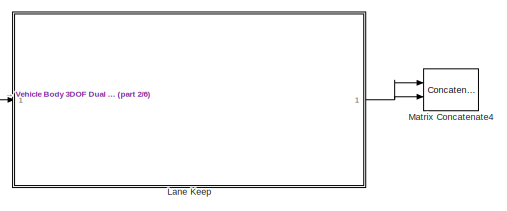
[diagram: Vehicle Model 3 - PID - part 6/6, bottom center region]
BLOCK [SubSystem] Vehicle Model 3 - PID
  Ports = [3, 1]
  RequestExecContextInheritance = off
BLOCK [BusSelector] Vehicle Model 3 - PID/Bus Selector1
  OutputSignals = X,xdot
  Ports = [1, 2]
BLOCK [BusSelector] Vehicle Model 3 - PID/Bus Selector2
  OutputSignals = InertFrm.Cg.Disp.X,BdyFrm.Cg.Vel.xdot
  Ports = [1, 2]
BLOCK [Constant] Vehicle Model 3 - PID/Constant1
  Value = X_init
BLOCK [Constant] Vehicle Model 3 - PID/Constant2
  Value = Y_init
BLOCK [Constant] Vehicle Model 3 - PID/Constant3
  Value = 0
BLOCK [Delay] Vehicle Model 3 - PID/Delay
  DelayLength = 1
  InputPortMap = u0
  Ports = [1, 1]
BLOCK [SubSystem] Vehicle Model 3 - PID/Driving Mode Selector
  ErrorFcn = Stateflow.Translate.translate
  PermitHierarchicalResolution = ExplicitOnly
  Ports = [2, 1]
  RequestExecContextInheritance = off
  SFBlockType = Chart
  TreatAsAtomicUnit = on
BLOCK [Demux] Vehicle Model 3 - PID/Driving Mode Selector/ Demux 
  Outputs = 1
  Ports = [1, 1]
BLOCK [S-Function] Vehicle Model 3 - PID/Driving Mode Selector/ SFunction 
  EnableBusSupport = on
  FunctionName = sf_sfun
  PortCounts = [2 2]
  Ports = [2, 2]
  SFcnIsStateOwnerBlock = off
  SFunctionDeploymentMode = off
  Tag = Stateflow S-Function 1
BLOCK [Terminator] Vehicle Model 3 - PID/Driving Mode Selector/ Terminator 
BLOCK [Inport] Vehicle Model 3 - PID/Driving Mode Selector/command
BLOCK [Outport] Vehicle Model 3 - PID/Driving Mode Selector/driving_mode
BLOCK [Inport] Vehicle Model 3 - PID/Driving Mode Selector/lane_switch_finish
  Port = 2
BLOCK [Constant] Vehicle Model 3 - PID/Emergency Brake
  Value = -5
BLOCK [SubSystem] Vehicle Model 3 - PID/Free Drive Mode
  Ports = [1, 1]
  RequestExecContextInheritance = off
BLOCK [Saturate] Vehicle Model 3 - PID/Free Drive Mode/Acc Command
  LowerLimit = -3
  UpperLimit = 2
BLOCK [TransferFcn] Vehicle Model 3 - PID/Free Drive Mode/Acc Dynamics
  Denominator = [0.5 1]
BLOCK [Outport] Vehicle Model 3 - PID/Free Drive Mode/Acceleration command
BLOCK [Constant] Vehicle Model 3 - PID/Free Drive Mode/Constant
  Value = xdot_init
BLOCK [Inport] Vehicle Model 3 - PID/Free Drive Mode/Ego Speed
BLOCK [Sum] Vehicle Model 3 - PID/Free Drive Mode/Sum13
  Inputs = |+-
  Ports = [2, 1]
BLOCK [SubSystem] Vehicle Model 3 - PID/Lane Detection
  Ports = [1, 1]
  RequestExecContextInheritance = off
BLOCK [BusSelector] Vehicle Model 3 - PID/Lane Detection/Bus Selector
  OutputSignals = InertFrm.Cg.Disp.X,InertFrm.Cg.Disp.Y
  Ports = [1, 2]
BLOCK [Inport] Vehicle Model 3 - PID/Lane Detection/In1
BLOCK [MATLABSystem] Vehicle Model 3 - PID/Lane Detection/MATLAB System
  MaskDisplay = disp('lane_localization');\nport_label('input',1,'X');\nport_label('input',2,'Y');\nport_label('output',1,'lane_property');
  MaskType = lane_localization
  Ports = [2, 1]
  SimulateUsing = Code generation
  System = lane_localization
BLOCK [Outport] Vehicle Model 3 - PID/Lane Detection/lane_num
BLOCK [SubSystem] Vehicle Model 3 - PID/Lane Keep
  Ports = [1, 1]
  RequestExecContextInheritance = off
BLOCK [BusSelector] Vehicle Model 3 - PID/Lane Keep/Bus Selector
  OutputSignals = InertFrm.Cg.Disp.X,InertFrm.Cg.Disp.Y,InertFrm.Cg.Ang.psi
  Ports = [1, 3]
BLOCK [Inport] Vehicle Model 3 - PID/Lane Keep/In1
BLOCK [MATLABSystem] Vehicle Model 3 - PID/Lane Keep/MATLAB System1
  MaskDisplay = disp('lane_keeping_waypoints_generator');\nport_label('input',1,'pos');\nport_label('output',1,'way_point');
  MaskType = lane_keeping_waypoints_generator
  Ports = [1, 1]
  SimulateUsing = Code generation
  System = lane_keeping_waypoints_generator
BLOCK [Mux] Vehicle Model 3 - PID/Lane Keep/Mux
  DisplayOption = bar
  Inputs = 3
  Ports = [3, 1]
BLOCK [Reference] Vehicle Model 3 - PID/Lane Keep/Pure Pursuit  REF=robotalgslib/Pure Pursuit
  Ports = [2, 3]
  SourceBlock = robotalgslib/Pure Pursuit
  SourceProductBaseCode = NV,RO
  SourceType = nav.slalgs.internal.PurePursuit
BLOCK [Terminator] Vehicle Model 3 - PID/Lane Keep/Terminator
BLOCK [Terminator] Vehicle Model 3 - PID/Lane Keep/Terminator1
BLOCK [SubSystem] Vehicle Model 3 - PID/Lane Keep/Wheel Steering Angle Formulation
  Ports = [1, 1]
  RequestExecContextInheritance = off
BLOCK [Constant] Vehicle Model 3 - PID/Lane Keep/Wheel Steering Angle Formulation/Constant
  Value = 2
BLOCK [Product] Vehicle Model 3 - PID/Lane Keep/Wheel Steering Angle Formulation/Divide
  Inputs = */
  Ports = [2, 1]
BLOCK [Constant] Vehicle Model 3 - PID/Lane Keep/Wheel Steering Angle Formulation/LookAheadDistance
  Value = 4
BLOCK [Product] Vehicle Model 3 - PID/Lane Keep/Wheel Steering Angle Formulation/Product
  Ports = [2, 1]
BLOCK [Product] Vehicle Model 3 - PID/Lane Keep/Wheel Steering Angle Formulation/Product1
  Ports = [2, 1]
BLOCK [Sin] Vehicle Model 3 - PID/Lane Keep/Wheel Steering Angle Formulation/Sine Wave
  Ports = [1, 1]
  SampleTime = 0
  TimeSource = Use external signal
BLOCK [Trigonometry] Vehicle Model 3 - PID/Lane Keep/Wheel Steering Angle Formulation/Trigonometric Function
  Operator = atan
  Ports = [1, 1]
BLOCK [Constant] Vehicle Model 3 - PID/Lane Keep/Wheel Steering Angle Formulation/VehicleLength
  Value = 4
BLOCK [Inport] Vehicle Model 3 - PID/Lane Keep/Wheel Steering Angle Formulation/alpha
  NameLocation = top
BLOCK [Outport] Vehicle Model 3 - PID/Lane Keep/Wheel Steering Angle Formulation/yaw_angle
BLOCK [Outport] Vehicle Model 3 - PID/Lane Keep/yaw_angle
BLOCK [SubSystem] Vehicle Model 3 - PID/Lane Switch
  Ports = [2, 2]
  RequestExecContextInheritance = off
BLOCK [BusSelector] Vehicle Model 3 - PID/Lane Switch/Bus Selector
  OutputSignals = InertFrm.Cg.Disp.X,InertFrm.Cg.Disp.Y,BdyFrm.Cg.Vel.xdot,BdyFrm.Cg.Vel.ydot,BdyFrm.Cg.Acc.ay,InertFrm.Cg.Ang.psi
  Ports = [1, 6]
BLOCK [Inport] Vehicle Model 3 - PID/Lane Switch/Input
BLOCK [Inport] Vehicle Model 3 - PID/Lane Switch/Input1
  Port = 2
BLOCK [MATLABSystem] Vehicle Model 3 - PID/Lane Switch/MATLAB System
  MaskDisplay = disp('trajectory_generator');\nport_label('input',1,'current_point');\nport_label('input',2,'v_x');\nport_label('input',3,'v_y');\nport_label('input',4,'a_y');\nport_label('input',5,'drivingMode');\nport_label('output',1,'is_finish');\nport_label('output',2,'yaw_angle');
  MaskType = trajectory_generator
  Ports = [5, 2]
  SimulateUsing = Interpreted execution
  System = trajectory_generator
BLOCK [Concatenate] Vehicle Model 3 - PID/Lane Switch/Matrix Concatenate
  ConcatenateDimension = 2
  Mode = Multidimensional array
  Ports = [2, 1]
BLOCK [Reference] Vehicle Model 3 - PID/Lane Switch/PID Controller  REF=simulink/Continuous/PID Controller
  Ports = [1, 1]
  SourceBlock = simulink/Continuous/PID Controller
  SourceProductBaseCode = SL
  SourceType = PID 1dof
BLOCK [Reshape] Vehicle Model 3 - PID/Lane Switch/Reshape
  OutputDimensionality = Customize
  Ports = [1, 1]
BLOCK [Sum] Vehicle Model 3 - PID/Lane Switch/Sum
  Inputs = |+-
  Ports = [2, 1]
BLOCK [Outport] Vehicle Model 3 - PID/Lane Switch/is_finish
  Port = 2
BLOCK [Outport] Vehicle Model 3 - PID/Lane Switch/yaw_angle
BLOCK [Concatenate] Vehicle Model 3 - PID/Matrix Concatenate1
  ConcatenateDimension = 2
  Mode = Multidimensional array
  Ports = [2, 1]
BLOCK [Concatenate] Vehicle Model 3 - PID/Matrix Concatenate4
  ConcatenateDimension = 2
  Mode = Multidimensional array
  Ports = [2, 1]
BLOCK [MultiPortSwitch] Vehicle Model 3 - PID/Multiport Switch
  DataPortOrder = Zero-based contiguous
  InputSameDT = off
  Inputs = 6
  Ports = [7, 1]
  SaturateOnIntegerOverflow = off
  zeroidx = on
BLOCK [Integrator] Vehicle Model 3 - PID/Speed
  InitialCondition = xdot_init
  LimitOutput = on
  LowerSaturationLimit = 0
  Ports = [1, 1]
BLOCK [SubSystem] Vehicle Model 3 - PID/Subsystem
  Ports = [3, 2]
  RequestExecContextInheritance = off
BLOCK [BusSelector] Vehicle Model 3 - PID/Subsystem/Bus Selector
  OutputAsBus = on
  OutputSignals = InertFrm.Cg.Disp.X,InertFrm.Cg.Disp.Y,InertFrm.Cg.Ang.psi
  Ports = [1, 1]
BLOCK [BusSelector] Vehicle Model 3 - PID/Subsystem/Bus Selector1
  OutputSignals = X,Y,psi
  Ports = [1, 3]
BLOCK [BusSelector] Vehicle Model 3 - PID/Subsystem/Bus Selector2
  OutputSignals = InertFrm.Cg.Disp.X,InertFrm.Cg.Disp.Y,InertFrm.Cg.Ang.psi
  Ports = [1, 3]
BLOCK [Inport] Vehicle Model 3 - PID/Subsystem/Input
BLOCK [Inport] Vehicle Model 3 - PID/Subsystem/Input1
  Port = 2
BLOCK [Inport] Vehicle Model 3 - PID/Subsystem/Input2
  Port = 3
BLOCK [MATLABSystem] Vehicle Model 3 - PID/Subsystem/MATLAB System
  MaskDisplay = disp('obstacle_detector');\nport_label('input',1,'v1_pos');\nport_label('input',2,'v2_X');\nport_label('input',3,'v2_Y');\nport_label('input',4,'v2_psi');\nport_label('input',5,'ego_X');\nport_label('input',6,'ego_Y');\nport_label('input',7,'ego_psi');\nport_label('output',1,'mf_relative_distance');\nport_label('output',2,'rf_relative_distance');
  MaskType = obstacle_detector
  Ports = [7, 2]
  SimulateUsing = Interpreted execution
  System = obstacle_detector
  ego_frame = [ 4, 2 ]
  v1_frame = [ 4, 2 ]
  v2_frame = [ 4, 2 ]
BLOCK [MATLABSystem] Vehicle Model 3 - PID/Subsystem/MATLAB System1
  MaskDisplay = disp('command_generator');\nport_label('input',1,'mf_d');\nport_label('input',2,'lf_d');\nport_label('output',1,'command');
  MaskType = command_generator
  Ports = [2, 1]
  SimulateUsing = Interpreted execution
  System = command_generator
BLOCK [Outport] Vehicle Model 3 - PID/Subsystem/Output
  Port = 2
BLOCK [Outport] Vehicle Model 3 - PID/Subsystem/relative_distance
BLOCK [Terminator] Vehicle Model 3 - PID/Terminator1
BLOCK [Terminator] Vehicle Model 3 - PID/Terminator2
BLOCK [Terminator] Vehicle Model 3 - PID/Terminator3
BLOCK [Terminator] Vehicle Model 3 - PID/Terminator4
BLOCK [Terminator] Vehicle Model 3 - PID/Terminator5
BLOCK [Terminator] Vehicle Model 3 - PID/Terminator6
BLOCK [ToWorkspace] Vehicle Model 3 - PID/To Workspace
  FixptAsFi = on
  MaxDataPoints = inf
  Ports = [1]
  SampleTime = 0.1
  SaveFormat = Timeseries
  VariableName = ego_info
BLOCK [Inport] Vehicle Model 3 - PID/V1_Info
  Port = 2
BLOCK [Inport] Vehicle Model 3 - PID/V2_Info
  Port = 3
BLOCK [Reference] Vehicle Model 3 - PID/Vehicle Body 3DOF Dual Track  REF=autolibshared/Vehicle Body 3DOF Single Track
  Ports = [4, 7]
  SourceBlock = autolibshared/Vehicle Body 3DOF Single Track
  SourceProductBaseCode = PW,MT,VE,VP
  SourceType = Vehicle Body 3DOF Lateral
BLOCK [SubSystem] Vehicle Model 3 - PID/Vehicle Following Mode
  Ports = [3, 1]
  RequestExecContextInheritance = off
BLOCK [TransferFcn] Vehicle Model 3 - PID/Vehicle Following Mode/Acc Dynamics
  Denominator = [0.5 1]
BLOCK [Outport] Vehicle Model 3 - PID/Vehicle Following Mode/Acceleration command
BLOCK [Constant] Vehicle Model 3 - PID/Vehicle Following Mode/Default Spacing
  Value = 10
BLOCK [Inport] Vehicle Model 3 - PID/Vehicle Following Mode/Ego velocity
  NameLocation = top
  Port = 3
BLOCK [Constant] Vehicle Model 3 - PID/Vehicle Following Mode/Headway Time
  Value = 1.4
BLOCK [Inport] Vehicle Model 3 - PID/Vehicle Following Mode/Leader velocity
  Port = 2
BLOCK [SubSystem] Vehicle Model 3 - PID/Vehicle Following Mode/PID - Cruise Control
  Ports = [5, 1]
  RequestExecContextInheritance = off
BLOCK [Outport] Vehicle Model 3 - PID/Vehicle Following Mode/PID - Cruise Control/Acc Reference
BLOCK [Inport] Vehicle Model 3 - PID/Vehicle Following Mode/PID - Cruise Control/Default Spacing
BLOCK [Inport] Vehicle Model 3 - PID/Vehicle Following Mode/PID - Cruise Control/Ego Speed
  Port = 5
BLOCK [Reference] Vehicle Model 3 - PID/Vehicle Following Mode/PID - Cruise Control/PID Controller  REF=simulink/Continuous/PID Controller
  Ports = [1, 1]
  SourceBlock = simulink/Continuous/PID Controller
  SourceProductBaseCode = SL
  SourceType = PID 1dof
BLOCK [Product] Vehicle Model 3 - PID/Vehicle Following Mode/PID - Cruise Control/Product
  Ports = [2, 1]
BLOCK [Inport] Vehicle Model 3 - PID/Vehicle Following Mode/PID - Cruise Control/Relative Distance
  Port = 3
BLOCK [Inport] Vehicle Model 3 - PID/Vehicle Following Mode/PID - Cruise Control/Relative Speed
  Port = 4
BLOCK [Sum] Vehicle Model 3 - PID/Vehicle Following Mode/PID - Cruise Control/Subtract
  IconShape = rectangular
  Inputs = +-
  Ports = [2, 1]
BLOCK [Sum] Vehicle Model 3 - PID/Vehicle Following Mode/PID - Cruise Control/Sum
  Inputs = |++
  Ports = [2, 1]
BLOCK [Terminator] Vehicle Model 3 - PID/Vehicle Following Mode/PID - Cruise Control/Terminator
BLOCK [Inport] Vehicle Model 3 - PID/Vehicle Following Mode/PID - Cruise Control/Time Headway
  Port = 2
BLOCK [Inport] Vehicle Model 3 - PID/Vehicle Following Mode/Relative distance
BLOCK [Sum] Vehicle Model 3 - PID/Vehicle Following Mode/Sum13
  Inputs = |+-
  Ports = [2, 1]
BLOCK [UnitDelay] Vehicle Model 3 - PID/Vehicle Following Mode/Unit Delay
  HasFrameUpgradeWarning = on
  SampleTime = -1
BLOCK [UnitDelay] Vehicle Model 3 - PID/Vehicle Following Mode/Unit Delay1
  HasFrameUpgradeWarning = on
  SampleTime = -1
BLOCK [UnitDelay] Vehicle Model 3 - PID/Vehicle Following Mode/Unit Delay2
  HasFrameUpgradeWarning = on
  SampleTime = -1
BLOCK [Inport] Vehicle Model 3 - PID/perception_info
BLOCK [Outport] Vehicle Model 3 - PID/vehicle_info
ANNOTATION (root): Accelerator
ANNOTATION (root): Steering Wheel
ANNOTATION (root): Brake
ANNOTATION (root): Control Panel
ANNOTATION 2D Animation2: Tracking and Sensor Fusion
ANNOTATION Vehicle Model 1 - Manual: Use these inputs if you want to control manually
ANNOTATION Vehicle Model 1 - Manual/Powertrain & Driveline: Brakes
ANNOTATION Vehicle Model 1 - Manual/Powertrain & Driveline: Longitudinal Command Logic
ANNOTATION Vehicle Model 1 - Manual/Powertrain & Driveline: Powertrain & Driveline
ANNOTATION Vehicle Model 1 - Manual/Powertrain & Driveline: Vehicle Feedback
ANNOTATION Vehicle Model 2 - MPC: Decision Unit
ANNOTATION Vehicle Model 2 - MPC: Driving Modes
ANNOTATION Vehicle Model 2 - MPC: Lateral
ANNOTATION Vehicle Model 2 - MPC: Longitudinal
ANNOTATION Vehicle Model 2 - MPC: Perception and data process
ANNOTATION Vehicle Model 3 - PID: Control Unit
ANNOTATION Vehicle Model 3 - PID: Decision Unit
ANNOTATION Vehicle Model 3 - PID: Longitudinal Control
ANNOTATION Vehicle Model 3 - PID: Perception and data process
ANNOTATION Vehicle Model 3 - PID: Vehicle Dynamic
ANNOTATION Vehicle Model 3 - PID/Vehicle Following Mode/PID - Cruise Control: V_ego * t_headway + D_space = Reference Distance
LINE 2D Animation/Bus Selector1:1 -> 2D Animation/MATLAB Function:2
LINE 2D Animation/Bus Selector2:1 -> 2D Animation/MATLAB Function:3
LINE 2D Animation/Bus Selector:1 -> 2D Animation/MATLAB Function:1
LINE 2D Animation/vehicle1_info:1 -> 2D Animation/Bus Selector:1
LINE 2D Animation/vehicle2_info:1 -> 2D Animation/Bus Selector1:1
LINE 2D Animation/vehicle3_info:1 -> 2D Animation/Bus Selector2:1
LINE 2D Animation2/Bus Selector:1 -> 2D Animation2/Mux:1
LINE 2D Animation2/Bus Selector:2 -> 2D Animation2/Mux:2
LINE 2D Animation2/Bus Selector:3 -> 2D Animation2/Mux1:1
LINE 2D Animation2/Bus Selector:4 -> 2D Animation2/Mux1:2
LINE 2D Animation2/Bus Selector:5 -> 2D Animation2/rad -> degree:1
LINE 2D Animation2/Bus Selector:6 -> 2D Animation2/rad//s -> degree//s:1
LINE 2D Animation2/Cluster Radar Detections:1 -> 2D Animation2/Detection Concatenation:1
LINE 2D Animation2/Detection Concatenation:1 -> 2D Animation2/Multi-Object Tracker:1
LINE 2D Animation2/In1:1 -> 2D Animation2/Bus Selector:1
LINE 2D Animation2/Multi-Object Tracker:1 -> 2D Animation2/Terminator1:1
LINE 2D Animation2/Mux1:1 -> 2D Animation2/Rate Transition3:1
LINE 2D Animation2/Mux:1 -> 2D Animation2/Rate Transition1:1
LINE 2D Animation2/Radar:1 -> 2D Animation2/Cluster Radar Detections:1
LINE 2D Animation2/Rate Transition1:1 -> 2D Animation2/Pack Ego Actor:1
LINE 2D Animation2/Rate Transition3:1 -> 2D Animation2/Pack Ego Actor:2
LINE 2D Animation2/Rate Transition4:1 -> 2D Animation2/Pack Ego Actor:3
LINE 2D Animation2/Rate Transition5:1 -> 2D Animation2/Pack Ego Actor:4
LINE 2D Animation2/Scenario Reader:1 -> 2D Animation2/Radar:1
LINE 2D Animation2/Scenario Reader:2 -> 2D Animation2/Terminator:1
LINE 2D Animation2/rad -> degree:1 -> 2D Animation2/Rate Transition4:1
LINE 2D Animation2/rad//s -> degree//s:1 -> 2D Animation2/Rate Transition5:1
LINE 3D Animation/Bus Creator1:1 -> 3D Animation/VR Sink:3
LINE 3D Animation/Bus Creator:1 -> 3D Animation/VR Sink:2
LINE 3D Animation/Constant1:1 -> 3D Animation/Bus Creator:1
LINE 3D Animation/Constant2:1 -> 3D Animation/Bus Creator:3
LINE 3D Animation/Constant3:1 -> 3D Animation/Bus Creator1:2
LINE 3D Animation/Constant:1 -> 3D Animation/Bus Creator:2
LINE 3D Animation/In1:1 -> 3D Animation/VR Signal Expander:1
LINE 3D Animation/In2:1 -> 3D Animation/Bus Creator1:3
LINE 3D Animation/In3:1 -> 3D Animation/Bus Creator1:1
LINE 3D Animation/In4:1 -> 3D Animation/Bus Creator:4
LINE 3D Animation/VR Signal Expander:1 -> 3D Animation/VR Sink:1
LINE Subsystem/Bus Selector1:1 -> Subsystem/Collision Detection:2
LINE Subsystem/Bus Selector:1 -> Subsystem/Collision Detection:1
LINE Subsystem/Collision Detection:1 -> Subsystem/Stop Simulation:1
LINE Subsystem/vehicle1_info:1 -> Subsystem/Bus Selector:1
LINE Subsystem/vehicle2_info:1 -> Subsystem/Bus Selector1:1
LINE Vehicle Model 1 - Manual/Bus Creator:1 -> Vehicle Model 1 - Manual/Vehicle Body 3DOF Dual Track:1
LINE Vehicle Model 1 - Manual/Constant1:1 -> Vehicle Model 1 - Manual/Vehicle Body 3DOF Dual Track:5
LINE Vehicle Model 1 - Manual/Constant2:1 -> Vehicle Model 1 - Manual/Vehicle Body 3DOF Dual Track:6
LINE Vehicle Model 1 - Manual/Constant3:1 -> Vehicle Model 1 - Manual/Vehicle Body 3DOF Dual Track:7
LINE Vehicle Model 1 - Manual/Constant4:1 -> Vehicle Model 1 - Manual/Kinematic Steering:1
LINE Vehicle Model 1 - Manual/Constant5:1 -> Vehicle Model 1 - Manual/Powertrain & Driveline:1
LINE Vehicle Model 1 - Manual/Constant6:1 -> Vehicle Model 1 - Manual/Powertrain & Driveline:2
LINE Vehicle Model 1 - Manual/Constant:1 -> Vehicle Model 1 - Manual/Vehicle Body 3DOF Dual Track:4
LINE Vehicle Model 1 - Manual/Kinematic Steering:1 -> Vehicle Model 1 - Manual/Terminator:1
LINE Vehicle Model 1 - Manual/Kinematic Steering:2 -> Vehicle Model 1 - Manual/Bus Creator:1
LINE Vehicle Model 1 - Manual/Kinematic Steering:3 -> Vehicle Model 1 - Manual/Bus Creator:2
LINE Vehicle Model 1 - Manual/Powertrain & Driveline/Acc:1 -> Vehicle Model 1 - Manual/Powertrain & Driveline/Switch1:3
LINE Vehicle Model 1 - Manual/Powertrain & Driveline/Brake System/Decc:1 -> Vehicle Model 1 - Manual/Powertrain & Driveline/Brake System/Saturation1:1
LINE Vehicle Model 1 - Manual/Powertrain & Driveline/Brake System/Hydraulics:1 -> Vehicle Model 1 - Manual/Powertrain & Driveline/Brake System/Pressure:1
LINE Vehicle Model 1 - Manual/Powertrain & Driveline/Brake System/Pressure:1 -> Vehicle Model 1 - Manual/Powertrain & Driveline/Brake System/Selector:1
LINE Vehicle Model 1 - Manual/Powertrain & Driveline/Brake System/Saturation1:1 -> Vehicle Model 1 - Manual/Powertrain & Driveline/Brake System/Hydraulics:1
LINE Vehicle Model 1 - Manual/Powertrain & Driveline/Brake System/Selector:1 -> Vehicle Model 1 - Manual/Powertrain & Driveline/Brake System/Signal Specification:1
LINE Vehicle Model 1 - Manual/Powertrain & Driveline/Brake System/Signal Specification:1 -> Vehicle Model 1 - Manual/Powertrain & Driveline/Brake System/Prs:1
LINE Vehicle Model 1 - Manual/Powertrain & Driveline/Brake System:1 -> Vehicle Model 1 - Manual/Powertrain & Driveline/Brakes and Wheels:2
LINE Vehicle Model 1 - Manual/Powertrain & Driveline/Brakes and Wheels/AxlTrq:1 -> Vehicle Model 1 - Manual/Powertrain & Driveline/Brakes and Wheels/Longitudinal Wheel - Disc Brake:2
LINE Vehicle Model 1 - Manual/Powertrain & Driveline/Brakes and Wheels/BrkPrs:1 -> Vehicle Model 1 - Manual/Powertrain & Driveline/Brakes and Wheels/Longitudinal Wheel - Disc Brake:1
LINE Vehicle Model 1 - Manual/Powertrain & Driveline/Brakes and Wheels/Bus Selector:1 -> Vehicle Model 1 - Manual/Powertrain & Driveline/Brakes and Wheels/AxlPwr:1
LINE Vehicle Model 1 - Manual/Powertrain & Driveline/Brakes and Wheels/Fz:1 -> Vehicle Model 1 - Manual/Powertrain & Driveline/Brakes and Wheels/Longitudinal Wheel - Disc Brake:4
LINE Vehicle Model 1 - Manual/Powertrain & Driveline/Brakes and Wheels/Longitudinal Wheel - Disc Brake:1 -> Vehicle Model 1 - Manual/Powertrain & Driveline/Brakes and Wheels/Bus Selector:1
LINE Vehicle Model 1 - Manual/Powertrain & Driveline/Brakes and Wheels/Longitudinal Wheel - Disc Brake:2 -> Vehicle Model 1 - Manual/Powertrain & Driveline/Brakes and Wheels/Product:1
LINE Vehicle Model 1 - Manual/Powertrain & Driveline/Brakes and Wheels/Longitudinal Wheel - Disc Brake:3 -> Vehicle Model 1 - Manual/Powertrain & Driveline/Brakes and Wheels/Omega:1
LINE Vehicle Model 1 - Manual/Powertrain & Driveline/Brakes and Wheels/Product:1 -> Vehicle Model 1 - Manual/Powertrain & Driveline/Brakes and Wheels/Fx:1
LINE Vehicle Model 1 - Manual/Powertrain & Driveline/Brakes and Wheels/Vx:1 -> Vehicle Model 1 - Manual/Powertrain & Driveline/Brakes and Wheels/Longitudinal Wheel - Disc Brake:3
LINE Vehicle Model 1 - Manual/Powertrain & Driveline/Brakes and Wheels/delta:1 -> Vehicle Model 1 - Manual/Powertrain & Driveline/Brakes and Wheels/wheel2body:1
LINE Vehicle Model 1 - Manual/Powertrain & Driveline/Brakes and Wheels/wheel2body:1 -> Vehicle Model 1 - Manual/Powertrain & Driveline/Brakes and Wheels/Product:2
LINE Vehicle Model 1 - Manual/Powertrain & Driveline/Brakes and Wheels:1 -> Vehicle Model 1 - Manual/Powertrain & Driveline/Goto:1
LINE Vehicle Model 1 - Manual/Powertrain & Driveline/Brakes and Wheels:2 -> Vehicle Model 1 - Manual/Powertrain & Driveline/Goto1:1
LINE Vehicle Model 1 - Manual/Powertrain & Driveline/Brakes and Wheels:3 -> Vehicle Model 1 - Manual/Powertrain & Driveline/Demux1:1
LINE Vehicle Model 1 - Manual/Powertrain & Driveline/Bus Selector1:1 -> Vehicle Model 1 - Manual/Powertrain & Driveline/Mux1:1
LINE Vehicle Model 1 - Manual/Powertrain & Driveline/Bus Selector1:2 -> Vehicle Model 1 - Manual/Powertrain & Driveline/Mux1:2
LINE Vehicle Model 1 - Manual/Powertrain & Driveline/Bus Selector1:3 -> Vehicle Model 1 - Manual/Powertrain & Driveline/Mux1:3
LINE Vehicle Model 1 - Manual/Powertrain & Driveline/Bus Selector1:4 -> Vehicle Model 1 - Manual/Powertrain & Driveline/Mux1:4
LINE Vehicle Model 1 - Manual/Powertrain & Driveline/Bus Selector2:1 -> Vehicle Model 1 - Manual/Powertrain & Driveline/Unit Conversion:1
LINE Vehicle Model 1 - Manual/Powertrain & Driveline/Bus Selector3:1 -> Vehicle Model 1 - Manual/Powertrain & Driveline/Bus to Vector:1
LINE Vehicle Model 1 - Manual/Powertrain & Driveline/Bus Selector:1 -> Vehicle Model 1 - Manual/Powertrain & Driveline/Mux:1
LINE Vehicle Model 1 - Manual/Powertrain & Driveline/Bus Selector:2 -> Vehicle Model 1 - Manual/Powertrain & Driveline/Mux:2
LINE Vehicle Model 1 - Manual/Powertrain & Driveline/Bus Selector:3 -> Vehicle Model 1 - Manual/Powertrain & Driveline/Mux:3
LINE Vehicle Model 1 - Manual/Powertrain & Driveline/Bus Selector:4 -> Vehicle Model 1 - Manual/Powertrain & Driveline/Mux:4
LINE Vehicle Model 1 - Manual/Powertrain & Driveline/Bus to Vector:1 -> Vehicle Model 1 - Manual/Powertrain & Driveline/Brakes and Wheels:5
NET Vehicle Model 1 - Manual/Powertrain & Driveline/Constant:1 -> Vehicle Model 1 - Manual/Powertrain & Driveline/Switch1:1, Vehicle Model 1 - Manual/Powertrain & Driveline/Switch2:3
NET Vehicle Model 1 - Manual/Powertrain & Driveline/Decel:1 -> Vehicle Model 1 - Manual/Powertrain & Driveline/Switch1:2, Vehicle Model 1 - Manual/Powertrain & Driveline/Switch2:1, Vehicle Model 1 - Manual/Powertrain & Driveline/Switch2:2
LINE Vehicle Model 1 - Manual/Powertrain & Driveline/Demux1:1 -> Vehicle Model 1 - Manual/Powertrain & Driveline/Front Force:1
LINE Vehicle Model 1 - Manual/Powertrain & Driveline/Demux1:2 -> Vehicle Model 1 - Manual/Powertrain & Driveline/Rear Force:1
NET Vehicle Model 1 - Manual/Powertrain & Driveline/Driveline/AWD/AWD:1 -> Vehicle Model 1 - Manual/Powertrain & Driveline/Driveline/AWD/Multiport Switch:4, Vehicle Model 1 - Manual/Powertrain & Driveline/Driveline/AWD/Unary Minus:1
LINE Vehicle Model 1 - Manual/Powertrain & Driveline/Driveline/AWD/Add:1 -> Vehicle Model 1 - Manual/Powertrain & Driveline/Driveline/AWD/Multiport Switch:1
LINE Vehicle Model 1 - Manual/Powertrain & Driveline/Driveline/AWD/Constant1:1 -> Vehicle Model 1 - Manual/Powertrain & Driveline/Driveline/AWD/Multiport Switch:3
LINE Vehicle Model 1 - Manual/Powertrain & Driveline/Driveline/AWD/Constant:1 -> Vehicle Model 1 - Manual/Powertrain & Driveline/Driveline/AWD/Add:2
LINE Vehicle Model 1 - Manual/Powertrain & Driveline/Driveline/AWD/Gear:1 -> Vehicle Model 1 - Manual/Powertrain & Driveline/Driveline/AWD/Add:1
LINE Vehicle Model 1 - Manual/Powertrain & Driveline/Driveline/AWD/Multiport Switch:1 -> Vehicle Model 1 - Manual/Powertrain & Driveline/Driveline/AWD/TAxles:1
LINE Vehicle Model 1 - Manual/Powertrain & Driveline/Driveline/AWD/TPowertrain:1 -> Vehicle Model 1 - Manual/Powertrain & Driveline/Driveline/AWD/AWD:1
LINE Vehicle Model 1 - Manual/Powertrain & Driveline/Driveline/AWD/Unary Minus:1 -> Vehicle Model 1 - Manual/Powertrain & Driveline/Driveline/AWD/Multiport Switch:2
LINE Vehicle Model 1 - Manual/Powertrain & Driveline/Driveline/FWD/Add:1 -> Vehicle Model 1 - Manual/Powertrain & Driveline/Driveline/FWD/Multiport Switch:1
LINE Vehicle Model 1 - Manual/Powertrain & Driveline/Driveline/FWD/Constant1:1 -> Vehicle Model 1 - Manual/Powertrain & Driveline/Driveline/FWD/Multiport Switch:3
LINE Vehicle Model 1 - Manual/Powertrain & Driveline/Driveline/FWD/Constant:1 -> Vehicle Model 1 - Manual/Powertrain & Driveline/Driveline/FWD/Add:2
NET Vehicle Model 1 - Manual/Powertrain & Driveline/Driveline/FWD/FWD:1 -> Vehicle Model 1 - Manual/Powertrain & Driveline/Driveline/FWD/Multiport Switch:4, Vehicle Model 1 - Manual/Powertrain & Driveline/Driveline/FWD/Unary Minus:1
LINE Vehicle Model 1 - Manual/Powertrain & Driveline/Driveline/FWD/Gear:1 -> Vehicle Model 1 - Manual/Powertrain & Driveline/Driveline/FWD/Add:1
LINE Vehicle Model 1 - Manual/Powertrain & Driveline/Driveline/FWD/Multiport Switch:1 -> Vehicle Model 1 - Manual/Powertrain & Driveline/Driveline/FWD/TAxles:1
LINE Vehicle Model 1 - Manual/Powertrain & Driveline/Driveline/FWD/TPowertrain:1 -> Vehicle Model 1 - Manual/Powertrain & Driveline/Driveline/FWD/FWD:1
LINE Vehicle Model 1 - Manual/Powertrain & Driveline/Driveline/FWD/Unary Minus:1 -> Vehicle Model 1 - Manual/Powertrain & Driveline/Driveline/FWD/Multiport Switch:2
LINE Vehicle Model 1 - Manual/Powertrain & Driveline/Driveline/RWD/Add:1 -> Vehicle Model 1 - Manual/Powertrain & Driveline/Driveline/RWD/Multiport Switch:1
LINE Vehicle Model 1 - Manual/Powertrain & Driveline/Driveline/RWD/Constant1:1 -> Vehicle Model 1 - Manual/Powertrain & Driveline/Driveline/RWD/Multiport Switch:3
LINE Vehicle Model 1 - Manual/Powertrain & Driveline/Driveline/RWD/Constant:1 -> Vehicle Model 1 - Manual/Powertrain & Driveline/Driveline/RWD/Add:2
LINE Vehicle Model 1 - Manual/Powertrain & Driveline/Driveline/RWD/Gear:1 -> Vehicle Model 1 - Manual/Powertrain & Driveline/Driveline/RWD/Add:1
LINE Vehicle Model 1 - Manual/Powertrain & Driveline/Driveline/RWD/Multiport Switch:1 -> Vehicle Model 1 - Manual/Powertrain & Driveline/Driveline/RWD/TAxles:1
NET Vehicle Model 1 - Manual/Powertrain & Driveline/Driveline/RWD/RWD:1 -> Vehicle Model 1 - Manual/Powertrain & Driveline/Driveline/RWD/Multiport Switch:4, Vehicle Model 1 - Manual/Powertrain & Driveline/Driveline/RWD/Unary Minus:1
LINE Vehicle Model 1 - Manual/Powertrain & Driveline/Driveline/RWD/TPowertrain:1 -> Vehicle Model 1 - Manual/Powertrain & Driveline/Driveline/RWD/RWD:1
LINE Vehicle Model 1 - Manual/Powertrain & Driveline/Driveline/RWD/Unary Minus:1 -> Vehicle Model 1 - Manual/Powertrain & Driveline/Driveline/RWD/Multiport Switch:2
LINE Vehicle Model 1 - Manual/Powertrain & Driveline/Driveline:1 -> Vehicle Model 1 - Manual/Powertrain & Driveline/Brakes and Wheels:1
LINE Vehicle Model 1 - Manual/Powertrain & Driveline/From1:1 -> Vehicle Model 1 - Manual/Powertrain & Driveline/Powertrain:3
LINE Vehicle Model 1 - Manual/Powertrain & Driveline/From:1 -> Vehicle Model 1 - Manual/Powertrain & Driveline/Powertrain:2
LINE Vehicle Model 1 - Manual/Powertrain & Driveline/Gear:1 -> Vehicle Model 1 - Manual/Powertrain & Driveline/Driveline:2
LINE Vehicle Model 1 - Manual/Powertrain & Driveline/Mux1:1 -> Vehicle Model 1 - Manual/Powertrain & Driveline/Suspension:1
LINE Vehicle Model 1 - Manual/Powertrain & Driveline/Mux:1 -> Vehicle Model 1 - Manual/Powertrain & Driveline/Brakes and Wheels:3
LINE Vehicle Model 1 - Manual/Powertrain & Driveline/Powertrain/Abs1:1 -> Vehicle Model 1 - Manual/Powertrain & Driveline/Powertrain/Max:1
LINE Vehicle Model 1 - Manual/Powertrain & Driveline/Powertrain/Abs:1 -> Vehicle Model 1 - Manual/Powertrain & Driveline/Powertrain/Subtract:2
NET Vehicle Model 1 - Manual/Powertrain & Driveline/Powertrain/Acc:1 -> Vehicle Model 1 - Manual/Powertrain & Driveline/Powertrain/Switch:1, Vehicle Model 1 - Manual/Powertrain & Driveline/Powertrain/Tip Out:1
LINE Vehicle Model 1 - Manual/Powertrain & Driveline/Powertrain/AxlPwr:1 -> Vehicle Model 1 - Manual/Powertrain & Driveline/Powertrain/Sum of Elements:1
LINE Vehicle Model 1 - Manual/Powertrain & Driveline/Powertrain/Constant3:1 -> Vehicle Model 1 - Manual/Powertrain & Driveline/Powertrain/Saturation Dynamic1:3
LINE Vehicle Model 1 - Manual/Powertrain & Driveline/Powertrain/Diff Torque:1 -> Vehicle Model 1 - Manual/Powertrain & Driveline/Powertrain/Saturation Dynamic1:2
LINE Vehicle Model 1 - Manual/Powertrain & Driveline/Powertrain/Divide:1 -> Vehicle Model 1 - Manual/Powertrain & Driveline/Powertrain/Saturation3:1
LINE Vehicle Model 1 - Manual/Powertrain & Driveline/Powertrain/EngPwr:1 -> Vehicle Model 1 - Manual/Powertrain & Driveline/Powertrain/Subtract:1
LINE Vehicle Model 1 - Manual/Powertrain & Driveline/Powertrain/Gear:1 -> Vehicle Model 1 - Manual/Powertrain & Driveline/Powertrain/Switch:2
LINE Vehicle Model 1 - Manual/Powertrain & Driveline/Powertrain/Max:1 -> Vehicle Model 1 - Manual/Powertrain & Driveline/Powertrain/div0protect:1
LINE Vehicle Model 1 - Manual/Powertrain & Driveline/Powertrain/Omega:1 -> Vehicle Model 1 - Manual/Powertrain & Driveline/Powertrain/Abs1:1
LINE Vehicle Model 1 - Manual/Powertrain & Driveline/Powertrain/Powertrain:1 -> Vehicle Model 1 - Manual/Powertrain & Driveline/Powertrain/AxlTrq:1
LINE Vehicle Model 1 - Manual/Powertrain & Driveline/Powertrain/Saturation Dynamic1:1 -> Vehicle Model 1 - Manual/Powertrain & Driveline/Powertrain/Powertrain:1
LINE Vehicle Model 1 - Manual/Powertrain & Driveline/Powertrain/Saturation2:1 -> Vehicle Model 1 - Manual/Powertrain & Driveline/Powertrain/Divide:1
LINE Vehicle Model 1 - Manual/Powertrain & Driveline/Powertrain/Saturation3:1 -> Vehicle Model 1 - Manual/Powertrain & Driveline/Powertrain/Saturation Dynamic1:1
LINE Vehicle Model 1 - Manual/Powertrain & Driveline/Powertrain/Saturation:1 -> Vehicle Model 1 - Manual/Powertrain & Driveline/Powertrain/Diff Torque:1
LINE Vehicle Model 1 - Manual/Powertrain & Driveline/Powertrain/Subtract:1 -> Vehicle Model 1 - Manual/Powertrain & Driveline/Powertrain/Saturation2:1
LINE Vehicle Model 1 - Manual/Powertrain & Driveline/Powertrain/Sum of Elements:1 -> Vehicle Model 1 - Manual/Powertrain & Driveline/Powertrain/Abs:1
LINE Vehicle Model 1 - Manual/Powertrain & Driveline/Powertrain/Switch:1 -> Vehicle Model 1 - Manual/Powertrain & Driveline/Powertrain/Saturation:1
LINE Vehicle Model 1 - Manual/Powertrain & Driveline/Powertrain/Tip Out:1 -> Vehicle Model 1 - Manual/Powertrain & Driveline/Powertrain/Switch:3
LINE Vehicle Model 1 - Manual/Powertrain & Driveline/Powertrain/div0protect:1 -> Vehicle Model 1 - Manual/Powertrain & Driveline/Powertrain/Divide:2
LINE Vehicle Model 1 - Manual/Powertrain & Driveline/Powertrain:1 -> Vehicle Model 1 - Manual/Powertrain & Driveline/Driveline:1
LINE Vehicle Model 1 - Manual/Powertrain & Driveline/Signal Specification:1 -> Vehicle Model 1 - Manual/Powertrain & Driveline/Terminator:1
LINE Vehicle Model 1 - Manual/Powertrain & Driveline/Suspension:1 -> Vehicle Model 1 - Manual/Powertrain & Driveline/Brakes and Wheels:4
LINE Vehicle Model 1 - Manual/Powertrain & Driveline/Switch1:1 -> Vehicle Model 1 - Manual/Powertrain & Driveline/Powertrain:1
LINE Vehicle Model 1 - Manual/Powertrain & Driveline/Switch2:1 -> Vehicle Model 1 - Manual/Powertrain & Driveline/Brake System:1
LINE Vehicle Model 1 - Manual/Powertrain & Driveline/Unit Conversion:1 -> Vehicle Model 1 - Manual/Powertrain & Driveline/Signal Specification:1
NET Vehicle Model 1 - Manual/Powertrain & Driveline/VehFdbk:1 -> Vehicle Model 1 - Manual/Powertrain & Driveline/Bus Selector1:1, Vehicle Model 1 - Manual/Powertrain & Driveline/Bus Selector2:1, Vehicle Model 1 - Manual/Powertrain & Driveline/Bus Selector3:1, Vehicle Model 1 - Manual/Powertrain & Driveline/Bus Selector:1
LINE Vehicle Model 1 - Manual/Powertrain & Driveline:1 -> Vehicle Model 1 - Manual/Vehicle Body 3DOF Dual Track:2
LINE Vehicle Model 1 - Manual/Powertrain & Driveline:2 -> Vehicle Model 1 - Manual/Vehicle Body 3DOF Dual Track:3
NET Vehicle Model 1 - Manual/Vehicle Body 3DOF Dual Track:1 -> Vehicle Model 1 - Manual/Powertrain & Driveline:3, Vehicle Model 1 - Manual/To Workspace:1, Vehicle Model 1 - Manual/vehicle_info:1
LINE Vehicle Model 1 - Manual/Vehicle Body 3DOF Dual Track:2 -> Vehicle Model 1 - Manual/Terminator4:1
LINE Vehicle Model 1 - Manual/Vehicle Body 3DOF Dual Track:3 -> Vehicle Model 1 - Manual/Terminator5:1
LINE Vehicle Model 1 - Manual/Vehicle Body 3DOF Dual Track:4 -> Vehicle Model 1 - Manual/Terminator6:1
LINE Vehicle Model 1 - Manual/Vehicle Body 3DOF Dual Track:5 -> Vehicle Model 1 - Manual/Terminator7:1
LINE Vehicle Model 1 - Manual/Vehicle Body 3DOF Dual Track:6 -> Vehicle Model 1 - Manual/Terminator8:1
LINE Vehicle Model 1 - Manual/Vehicle Body 3DOF Dual Track:7 -> Vehicle Model 1 - Manual/Terminator9:1
NET Vehicle Model 1 - Manual:1 -> Vehicle Model 2 - MPC:1, Vehicle Model 3 - PID:2
NET Vehicle Model 2 - MPC/Add:1 -> Vehicle Model 2 - MPC/Driving Mode Selector:1, Vehicle Model 2 - MPC/Vehicle Following Mode:1
LINE Vehicle Model 2 - MPC/Bus Creator1:1 -> Vehicle Model 2 - MPC/Lane Detection:1
NET Vehicle Model 2 - MPC/Bus Creator:1 -> Vehicle Model 2 - MPC/To Workspace:1, Vehicle Model 2 - MPC/vehicle_info:1
LINE Vehicle Model 2 - MPC/Bus Selector:1 -> Vehicle Model 2 - MPC/Add:1
LINE Vehicle Model 2 - MPC/Bus Selector:3 -> Vehicle Model 2 - MPC/Vehicle Following Mode:2
LINE Vehicle Model 2 - MPC/Constant:1 -> Vehicle Model 2 - MPC/Product2:2
LINE Vehicle Model 2 - MPC/Cos:1 -> Vehicle Model 2 - MPC/Product:2
LINE Vehicle Model 2 - MPC/Driving Mode Selector:1 -> Vehicle Model 2 - MPC/Multiport Switch:1
LINE Vehicle Model 2 - MPC/Emergency Brake:1 -> Vehicle Model 2 - MPC/Multiport Switch:4
LINE Vehicle Model 2 - MPC/Free Drive Mode/Acc Command:1 -> Vehicle Model 2 - MPC/Free Drive Mode/Acc Dynamics:1
NET Vehicle Model 2 - MPC/Free Drive Mode/Acc Dynamics:1 -> Vehicle Model 2 - MPC/Free Drive Mode/Acceleration command:1, Vehicle Model 2 - MPC/Free Drive Mode/Sum13:2
LINE Vehicle Model 2 - MPC/Free Drive Mode/Constant:1 -> Vehicle Model 2 - MPC/Free Drive Mode/Sum13:1
LINE Vehicle Model 2 - MPC/Free Drive Mode/Sum13:1 -> Vehicle Model 2 - MPC/Free Drive Mode/Acc Command:1
LINE Vehicle Model 2 - MPC/Free Drive Mode:1 -> Vehicle Model 2 - MPC/Multiport Switch:2
NET Vehicle Model 2 - MPC/Integrator:1 -> Vehicle Model 2 - MPC/Bus Creator:6, Vehicle Model 2 - MPC/Cos:1, Vehicle Model 2 - MPC/Sin:1, Vehicle Model 2 - MPC/Unit Delay:1
LINE Vehicle Model 2 - MPC/Lane Detection/Bus Selector:1 -> Vehicle Model 2 - MPC/Lane Detection/MATLAB System:1
LINE Vehicle Model 2 - MPC/Lane Detection/Bus Selector:2 -> Vehicle Model 2 - MPC/Lane Detection/MATLAB System:2
LINE Vehicle Model 2 - MPC/Lane Detection/In1:1 -> Vehicle Model 2 - MPC/Lane Detection/Bus Selector:1
LINE Vehicle Model 2 - MPC/Lane Detection/MATLAB System:1 -> Vehicle Model 2 - MPC/Lane Detection/lane_num:1
LINE Vehicle Model 2 - MPC/Lane Detection:1 -> Vehicle Model 2 - MPC/Bus Creator:7
LINE Vehicle Model 2 - MPC/Multiport Switch:1 -> Vehicle Model 2 - MPC/Speed:1
NET Vehicle Model 2 - MPC/Position1:1 -> Vehicle Model 2 - MPC/Bus Creator1:2, Vehicle Model 2 - MPC/Bus Creator:2
NET Vehicle Model 2 - MPC/Position:1 -> Vehicle Model 2 - MPC/Add:2, Vehicle Model 2 - MPC/Bus Creator1:1, Vehicle Model 2 - MPC/Bus Creator:1, Vehicle Model 2 - MPC/Product2:1
NET Vehicle Model 2 - MPC/Product1:1 -> Vehicle Model 2 - MPC/Bus Creator:5, Vehicle Model 2 - MPC/Position1:1
LINE Vehicle Model 2 - MPC/Product2:1 -> Vehicle Model 2 - MPC/Bus Creator:3
LINE Vehicle Model 2 - MPC/Product:1 -> Vehicle Model 2 - MPC/Position:1
LINE Vehicle Model 2 - MPC/Sin:1 -> Vehicle Model 2 - MPC/Product1:2
NET Vehicle Model 2 - MPC/Speed:1 -> Vehicle Model 2 - MPC/Bus Creator:4, Vehicle Model 2 - MPC/Product1:1, Vehicle Model 2 - MPC/Product:1, Vehicle Model 2 - MPC/Vehicle Following Mode:3
LINE Vehicle Model 2 - MPC/Sum1:1 -> Vehicle Model 2 - MPC/Integrator:1
LINE Vehicle Model 2 - MPC/Unit Delay:1 -> Vehicle Model 2 - MPC/Sum1:2
LINE Vehicle Model 2 - MPC/Vehicle Following Mode/Acc Dynamics:1 -> Vehicle Model 2 - MPC/Vehicle Following Mode/Acceleration command:1
LINE Vehicle Model 2 - MPC/Vehicle Following Mode/Adaptive Cruise Control System:1 -> Vehicle Model 2 - MPC/Vehicle Following Mode/Acc Dynamics:1
NET Vehicle Model 2 - MPC/Vehicle Following Mode/Ego velocity:1 -> Vehicle Model 2 - MPC/Vehicle Following Mode/Adaptive Cruise Control System:3, Vehicle Model 2 - MPC/Vehicle Following Mode/Sum13:2
LINE Vehicle Model 2 - MPC/Vehicle Following Mode/Headway Time:1 -> Vehicle Model 2 - MPC/Vehicle Following Mode/Adaptive Cruise Control System:2
LINE Vehicle Model 2 - MPC/Vehicle Following Mode/Leader velocity:1 -> Vehicle Model 2 - MPC/Vehicle Following Mode/Sum13:1
LINE Vehicle Model 2 - MPC/Vehicle Following Mode/Reference Velocity:1 -> Vehicle Model 2 - MPC/Vehicle Following Mode/Adaptive Cruise Control System:1
LINE Vehicle Model 2 - MPC/Vehicle Following Mode/Relative distance:1 -> Vehicle Model 2 - MPC/Vehicle Following Mode/Adaptive Cruise Control System:4
LINE Vehicle Model 2 - MPC/Vehicle Following Mode/Sum13:1 -> Vehicle Model 2 - MPC/Vehicle Following Mode/Adaptive Cruise Control System:5
LINE Vehicle Model 2 - MPC/Vehicle Following Mode:1 -> Vehicle Model 2 - MPC/Multiport Switch:3
LINE Vehicle Model 2 - MPC/perception_info:1 -> Vehicle Model 2 - MPC/Bus Selector:1
LINE Vehicle Model 2 - MPC/steering_command:1 -> Vehicle Model 2 - MPC/Sum1:1
NET Vehicle Model 2 - MPC:1 -> Vehicle Model 3 - PID:1, Vehicle Model 3 - PID:3
LINE Vehicle Model 3 - PID/Bus Selector1:2 -> Vehicle Model 3 - PID/Vehicle Following Mode:2
NET Vehicle Model 3 - PID/Bus Selector2:2 -> Vehicle Model 3 - PID/Free Drive Mode:1, Vehicle Model 3 - PID/Vehicle Following Mode:3
LINE Vehicle Model 3 - PID/Constant1:1 -> Vehicle Model 3 - PID/Vehicle Body 3DOF Dual Track:3
LINE Vehicle Model 3 - PID/Constant2:1 -> Vehicle Model 3 - PID/Vehicle Body 3DOF Dual Track:4
NET Vehicle Model 3 - PID/Constant3:1 -> Vehicle Model 3 - PID/Multiport Switch:2, Vehicle Model 3 - PID/Multiport Switch:6, Vehicle Model 3 - PID/Multiport Switch:7
LINE Vehicle Model 3 - PID/Delay:1 -> Vehicle Model 3 - PID/Driving Mode Selector:2
NET Vehicle Model 3 - PID/Driving Mode Selector:1 -> Vehicle Model 3 - PID/Lane Switch:2, Vehicle Model 3 - PID/Multiport Switch:1
LINE Vehicle Model 3 - PID/Emergency Brake:1 -> Vehicle Model 3 - PID/Multiport Switch:5
LINE Vehicle Model 3 - PID/Free Drive Mode/Acc Command:1 -> Vehicle Model 3 - PID/Free Drive Mode/Acc Dynamics:1
LINE Vehicle Model 3 - PID/Free Drive Mode/Acc Dynamics:1 -> Vehicle Model 3 - PID/Free Drive Mode/Acceleration command:1
LINE Vehicle Model 3 - PID/Free Drive Mode/Constant:1 -> Vehicle Model 3 - PID/Free Drive Mode/Sum13:1
LINE Vehicle Model 3 - PID/Free Drive Mode/Ego Speed:1 -> Vehicle Model 3 - PID/Free Drive Mode/Sum13:2
LINE Vehicle Model 3 - PID/Free Drive Mode/Sum13:1 -> Vehicle Model 3 - PID/Free Drive Mode/Acc Command:1
LINE Vehicle Model 3 - PID/Free Drive Mode:1 -> Vehicle Model 3 - PID/Multiport Switch:3
LINE Vehicle Model 3 - PID/Lane Detection/Bus Selector:1 -> Vehicle Model 3 - PID/Lane Detection/MATLAB System:1
LINE Vehicle Model 3 - PID/Lane Detection/Bus Selector:2 -> Vehicle Model 3 - PID/Lane Detection/MATLAB System:2
LINE Vehicle Model 3 - PID/Lane Detection/In1:1 -> Vehicle Model 3 - PID/Lane Detection/Bus Selector:1
LINE Vehicle Model 3 - PID/Lane Detection/MATLAB System:1 -> Vehicle Model 3 - PID/Lane Detection/lane_num:1
NET Vehicle Model 3 - PID/Lane Keep/Bus Selector:1 -> Vehicle Model 3 - PID/Lane Keep/MATLAB System1:1, Vehicle Model 3 - PID/Lane Keep/Mux:1
LINE Vehicle Model 3 - PID/Lane Keep/Bus Selector:2 -> Vehicle Model 3 - PID/Lane Keep/Mux:2
LINE Vehicle Model 3 - PID/Lane Keep/Bus Selector:3 -> Vehicle Model 3 - PID/Lane Keep/Mux:3
LINE Vehicle Model 3 - PID/Lane Keep/In1:1 -> Vehicle Model 3 - PID/Lane Keep/Bus Selector:1
LINE Vehicle Model 3 - PID/Lane Keep/MATLAB System1:1 -> Vehicle Model 3 - PID/Lane Keep/Pure Pursuit:2
LINE Vehicle Model 3 - PID/Lane Keep/Mux:1 -> Vehicle Model 3 - PID/Lane Keep/Pure Pursuit:1
LINE Vehicle Model 3 - PID/Lane Keep/Pure Pursuit:1 -> Vehicle Model 3 - PID/Lane Keep/Terminator:1
LINE Vehicle Model 3 - PID/Lane Keep/Pure Pursuit:2 -> Vehicle Model 3 - PID/Lane Keep/Terminator1:1
LINE Vehicle Model 3 - PID/Lane Keep/Pure Pursuit:3 -> Vehicle Model 3 - PID/Lane Keep/Wheel Steering Angle Formulation:1
LINE Vehicle Model 3 - PID/Lane Keep/Wheel Steering Angle Formulation/Constant:1 -> Vehicle Model 3 - PID/Lane Keep/Wheel Steering Angle Formulation/Product:1
LINE Vehicle Model 3 - PID/Lane Keep/Wheel Steering Angle Formulation/Divide:1 -> Vehicle Model 3 - PID/Lane Keep/Wheel Steering Angle Formulation/Trigonometric Function:1
LINE Vehicle Model 3 - PID/Lane Keep/Wheel Steering Angle Formulation/LookAheadDistance:1 -> Vehicle Model 3 - PID/Lane Keep/Wheel Steering Angle Formulation/Divide:2
LINE Vehicle Model 3 - PID/Lane Keep/Wheel Steering Angle Formulation/Product1:1 -> Vehicle Model 3 - PID/Lane Keep/Wheel Steering Angle Formulation/Divide:1
LINE Vehicle Model 3 - PID/Lane Keep/Wheel Steering Angle Formulation/Product:1 -> Vehicle Model 3 - PID/Lane Keep/Wheel Steering Angle Formulation/Product1:1
LINE Vehicle Model 3 - PID/Lane Keep/Wheel Steering Angle Formulation/Sine Wave:1 -> Vehicle Model 3 - PID/Lane Keep/Wheel Steering Angle Formulation/Product1:2
LINE Vehicle Model 3 - PID/Lane Keep/Wheel Steering Angle Formulation/Trigonometric Function:1 -> Vehicle Model 3 - PID/Lane Keep/Wheel Steering Angle Formulation/yaw_angle:1
LINE Vehicle Model 3 - PID/Lane Keep/Wheel Steering Angle Formulation/VehicleLength:1 -> Vehicle Model 3 - PID/Lane Keep/Wheel Steering Angle Formulation/Product:2
LINE Vehicle Model 3 - PID/Lane Keep/Wheel Steering Angle Formulation/alpha:1 -> Vehicle Model 3 - PID/Lane Keep/Wheel Steering Angle Formulation/Sine Wave:1
LINE Vehicle Model 3 - PID/Lane Keep/Wheel Steering Angle Formulation:1 -> Vehicle Model 3 - PID/Lane Keep/yaw_angle:1
NET Vehicle Model 3 - PID/Lane Keep:1 -> Vehicle Model 3 - PID/Matrix Concatenate4:1, Vehicle Model 3 - PID/Matrix Concatenate4:2
LINE Vehicle Model 3 - PID/Lane Switch/Bus Selector:1 -> Vehicle Model 3 - PID/Lane Switch/Matrix Concatenate:1
LINE Vehicle Model 3 - PID/Lane Switch/Bus Selector:2 -> Vehicle Model 3 - PID/Lane Switch/Matrix Concatenate:2
LINE Vehicle Model 3 - PID/Lane Switch/Bus Selector:3 -> Vehicle Model 3 - PID/Lane Switch/MATLAB System:2
LINE Vehicle Model 3 - PID/Lane Switch/Bus Selector:4 -> Vehicle Model 3 - PID/Lane Switch/MATLAB System:3
LINE Vehicle Model 3 - PID/Lane Switch/Bus Selector:5 -> Vehicle Model 3 - PID/Lane Switch/MATLAB System:4
LINE Vehicle Model 3 - PID/Lane Switch/Bus Selector:6 -> Vehicle Model 3 - PID/Lane Switch/Sum:2
LINE Vehicle Model 3 - PID/Lane Switch/Input1:1 -> Vehicle Model 3 - PID/Lane Switch/MATLAB System:5
LINE Vehicle Model 3 - PID/Lane Switch/Input:1 -> Vehicle Model 3 - PID/Lane Switch/Bus Selector:1
LINE Vehicle Model 3 - PID/Lane Switch/MATLAB System:1 -> Vehicle Model 3 - PID/Lane Switch/is_finish:1
LINE Vehicle Model 3 - PID/Lane Switch/MATLAB System:2 -> Vehicle Model 3 - PID/Lane Switch/Sum:1
LINE Vehicle Model 3 - PID/Lane Switch/Matrix Concatenate:1 -> Vehicle Model 3 - PID/Lane Switch/MATLAB System:1
LINE Vehicle Model 3 - PID/Lane Switch/PID Controller:1 -> Vehicle Model 3 - PID/Lane Switch/Reshape:1
LINE Vehicle Model 3 - PID/Lane Switch/Reshape:1 -> Vehicle Model 3 - PID/Lane Switch/yaw_angle:1
LINE Vehicle Model 3 - PID/Lane Switch/Sum:1 -> Vehicle Model 3 - PID/Lane Switch/PID Controller:1
NET Vehicle Model 3 - PID/Lane Switch:1 -> Vehicle Model 3 - PID/Matrix Concatenate1:1, Vehicle Model 3 - PID/Matrix Concatenate1:2
LINE Vehicle Model 3 - PID/Lane Switch:2 -> Vehicle Model 3 - PID/Delay:1
LINE Vehicle Model 3 - PID/Matrix Concatenate1:1 -> Vehicle Model 3 - PID/Vehicle Body 3DOF Dual Track:1
LINE Vehicle Model 3 - PID/Multiport Switch:1 -> Vehicle Model 3 - PID/Speed:1
LINE Vehicle Model 3 - PID/Speed:1 -> Vehicle Model 3 - PID/Vehicle Body 3DOF Dual Track:2
LINE Vehicle Model 3 - PID/Subsystem/Bus Selector1:1 -> Vehicle Model 3 - PID/Subsystem/MATLAB System:2
LINE Vehicle Model 3 - PID/Subsystem/Bus Selector1:2 -> Vehicle Model 3 - PID/Subsystem/MATLAB System:3
LINE Vehicle Model 3 - PID/Subsystem/Bus Selector1:3 -> Vehicle Model 3 - PID/Subsystem/MATLAB System:4
LINE Vehicle Model 3 - PID/Subsystem/Bus Selector2:1 -> Vehicle Model 3 - PID/Subsystem/MATLAB System:5
LINE Vehicle Model 3 - PID/Subsystem/Bus Selector2:2 -> Vehicle Model 3 - PID/Subsystem/MATLAB System:6
LINE Vehicle Model 3 - PID/Subsystem/Bus Selector2:3 -> Vehicle Model 3 - PID/Subsystem/MATLAB System:7
LINE Vehicle Model 3 - PID/Subsystem/Bus Selector:1 -> Vehicle Model 3 - PID/Subsystem/MATLAB System:1
LINE Vehicle Model 3 - PID/Subsystem/Input1:1 -> Vehicle Model 3 - PID/Subsystem/Bus Selector1:1
LINE Vehicle Model 3 - PID/Subsystem/Input2:1 -> Vehicle Model 3 - PID/Subsystem/Bus Selector2:1
LINE Vehicle Model 3 - PID/Subsystem/Input:1 -> Vehicle Model 3 - PID/Subsystem/Bus Selector:1
LINE Vehicle Model 3 - PID/Subsystem/MATLAB System1:1 -> Vehicle Model 3 - PID/Subsystem/Output:1
NET Vehicle Model 3 - PID/Subsystem/MATLAB System:1 -> Vehicle Model 3 - PID/Subsystem/MATLAB System1:1, Vehicle Model 3 - PID/Subsystem/relative_distance:1
LINE Vehicle Model 3 - PID/Subsystem/MATLAB System:2 -> Vehicle Model 3 - PID/Subsystem/MATLAB System1:2
LINE Vehicle Model 3 - PID/Subsystem:1 -> Vehicle Model 3 - PID/Vehicle Following Mode:1
LINE Vehicle Model 3 - PID/Subsystem:2 -> Vehicle Model 3 - PID/Driving Mode Selector:1
LINE Vehicle Model 3 - PID/V1_Info:1 -> Vehicle Model 3 - PID/Subsystem:1
LINE Vehicle Model 3 - PID/V2_Info:1 -> Vehicle Model 3 - PID/Subsystem:2
NET Vehicle Model 3 - PID/Vehicle Body 3DOF Dual Track:1 -> Vehicle Model 3 - PID/Bus Selector2:1, Vehicle Model 3 - PID/Lane Detection:1, Vehicle Model 3 - PID/Lane Keep:1, Vehicle Model 3 - PID/Lane Switch:1, Vehicle Model 3 - PID/Subsystem:3, Vehicle Model 3 - PID/To Workspace:1, Vehicle Model 3 - PID/vehicle_info:1
LINE Vehicle Model 3 - PID/Vehicle Body 3DOF Dual Track:2 -> Vehicle Model 3 - PID/Terminator1:1
LINE Vehicle Model 3 - PID/Vehicle Body 3DOF Dual Track:3 -> Vehicle Model 3 - PID/Terminator2:1
LINE Vehicle Model 3 - PID/Vehicle Body 3DOF Dual Track:4 -> Vehicle Model 3 - PID/Terminator3:1
LINE Vehicle Model 3 - PID/Vehicle Body 3DOF Dual Track:5 -> Vehicle Model 3 - PID/Terminator4:1
LINE Vehicle Model 3 - PID/Vehicle Body 3DOF Dual Track:6 -> Vehicle Model 3 - PID/Terminator5:1
LINE Vehicle Model 3 - PID/Vehicle Body 3DOF Dual Track:7 -> Vehicle Model 3 - PID/Terminator6:1
LINE Vehicle Model 3 - PID/Vehicle Following Mode/Acc Dynamics:1 -> Vehicle Model 3 - PID/Vehicle Following Mode/Acceleration command:1
LINE Vehicle Model 3 - PID/Vehicle Following Mode/Default Spacing:1 -> Vehicle Model 3 - PID/Vehicle Following Mode/PID - Cruise Control:1
LINE Vehicle Model 3 - PID/Vehicle Following Mode/Ego velocity:1 -> Vehicle Model 3 - PID/Vehicle Following Mode/Unit Delay:1
LINE Vehicle Model 3 - PID/Vehicle Following Mode/Headway Time:1 -> Vehicle Model 3 - PID/Vehicle Following Mode/PID - Cruise Control:2
LINE Vehicle Model 3 - PID/Vehicle Following Mode/Leader velocity:1 -> Vehicle Model 3 - PID/Vehicle Following Mode/Unit Delay1:1
LINE Vehicle Model 3 - PID/Vehicle Following Mode/PID - Cruise Control/Default Spacing:1 -> Vehicle Model 3 - PID/Vehicle Following Mode/PID - Cruise Control/Sum:1
LINE Vehicle Model 3 - PID/Vehicle Following Mode/PID - Cruise Control/Ego Speed:1 -> Vehicle Model 3 - PID/Vehicle Following Mode/PID - Cruise Control/Product:2
LINE Vehicle Model 3 - PID/Vehicle Following Mode/PID - Cruise Control/PID Controller:1 -> Vehicle Model 3 - PID/Vehicle Following Mode/PID - Cruise Control/Acc Reference:1
LINE Vehicle Model 3 - PID/Vehicle Following Mode/PID - Cruise Control/Product:1 -> Vehicle Model 3 - PID/Vehicle Following Mode/PID - Cruise Control/Sum:2
LINE Vehicle Model 3 - PID/Vehicle Following Mode/PID - Cruise Control/Relative Distance:1 -> Vehicle Model 3 - PID/Vehicle Following Mode/PID - Cruise Control/Subtract:1
LINE Vehicle Model 3 - PID/Vehicle Following Mode/PID - Cruise Control/Relative Speed:1 -> Vehicle Model 3 - PID/Vehicle Following Mode/PID - Cruise Control/Terminator:1
LINE Vehicle Model 3 - PID/Vehicle Following Mode/PID - Cruise Control/Subtract:1 -> Vehicle Model 3 - PID/Vehicle Following Mode/PID - Cruise Control/PID Controller:1
LINE Vehicle Model 3 - PID/Vehicle Following Mode/PID - Cruise Control/Sum:1 -> Vehicle Model 3 - PID/Vehicle Following Mode/PID - Cruise Control/Subtract:2
LINE Vehicle Model 3 - PID/Vehicle Following Mode/PID - Cruise Control/Time Headway:1 -> Vehicle Model 3 - PID/Vehicle Following Mode/PID - Cruise Control/Product:1
LINE Vehicle Model 3 - PID/Vehicle Following Mode/PID - Cruise Control:1 -> Vehicle Model 3 - PID/Vehicle Following Mode/Acc Dynamics:1
LINE Vehicle Model 3 - PID/Vehicle Following Mode/Relative distance:1 -> Vehicle Model 3 - PID/Vehicle Following Mode/Unit Delay2:1
LINE Vehicle Model 3 - PID/Vehicle Following Mode/Sum13:1 -> Vehicle Model 3 - PID/Vehicle Following Mode/PID - Cruise Control:4
LINE Vehicle Model 3 - PID/Vehicle Following Mode/Unit Delay1:1 -> Vehicle Model 3 - PID/Vehicle Following Mode/Sum13:1
LINE Vehicle Model 3 - PID/Vehicle Following Mode/Unit Delay2:1 -> Vehicle Model 3 - PID/Vehicle Following Mode/PID - Cruise Control:3
NET Vehicle Model 3 - PID/Vehicle Following Mode/Unit Delay:1 -> Vehicle Model 3 - PID/Vehicle Following Mode/PID - Cruise Control:5, Vehicle Model 3 - PID/Vehicle Following Mode/Sum13:2
LINE Vehicle Model 3 - PID/Vehicle Following Mode:1 -> Vehicle Model 3 - PID/Multiport Switch:4
LINE Vehicle Model 3 - PID/perception_info:1 -> Vehicle Model 3 - PID/Bus Selector1:1
note: NET lines group one-source signal fan-out (src -> all destinations, sorted); 1:1 wires keep LINE
CHART Vehicle Model 3 - PID/Driving Mode Selector states=3 transitions=4
  STATE_LABEL 'FreeDrive\nentry:\ndriving_mode=0;\n'
  STATE_LABEL 'LeftSwitch\nentry:\ndriving_mode=4;'
  STATE_LABEL 'Wait\nentry:\ndriving_mode=0'
CHART 2D Animation/MATLAB Function states=1 transitions=1
  STATE_LABEL 'eML_blk_kernel()'
  STATE_LABEL 'SCRIPT:\nfunction plotVehicle(V1_Pose, V2_Pose, V3_Pose)\n%% Prepare the trace of Vehicle 3 % Uncomment this section + the "plot" function for Vehicle 3\'s trace\n% persistent x_old y_old \n% \n% if isempty(x_old)\n%     x_old = V3_Pose(1);\n% else\n%     x_old = [x_old V3_Pose(1)];\n% end\n% \n% if isempty(y_old)\n%     y_old = V3_Pose(2);\n% else\n%     y_old = [y_old V3_Pose(2)];\n% end\n%% Clear previous Vehic...<+2646ch>'
CHART Vehicle Model 2 - MPC/Driving Mode Selector states=3 transitions=6
  STATE_LABEL 'VehicleFollowing\nentry:\ndrivingMode=2;'
  STATE_LABEL 'FreeDrive\nentry:\ndrivingMode =1;\n'
  STATE_LABEL 'EmergecyBrake\nentry:\ndrivingMode=3;'
CHART 2D Animation2/Pack Ego Actor states=1 transitions=1
  STATE_LABEL 'eML_blk_kernel()'
  STATE_LABEL "SCRIPT:\nfunction egoActor = packEgo(pos,vel,yaw,yawRate)\n% Pack ego information into a single ego actor bus\n%\n% Imoprtant note:\n% Output is a bus of type BusActorsActors. This is the same bus used by the\n% Scenario Reader to output an individual actor. If you change the\n% output bus name of Scenario Reader, change the output bus name here\n% as well by clicking on 'Edit Data' in the menu above.\n% i...<+290ch>"
CHART  states=0 transitions=0
CHART  states=0 transitions=0
CHART  states=0 transitions=0
CHART  states=0 transitions=0
